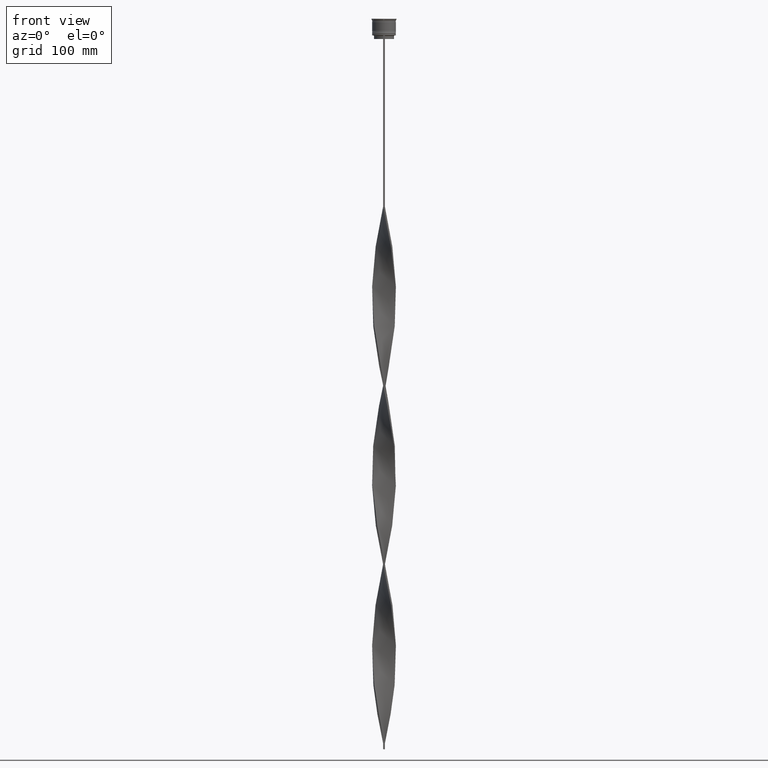
[diagram: clean part render]
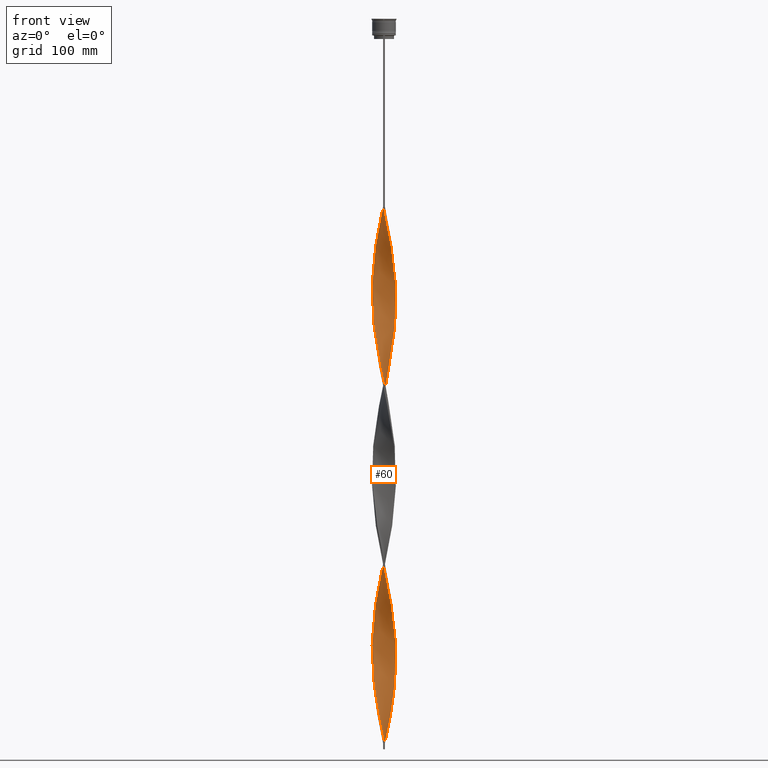
[diagram: same view with one face highlighted and labeled with its STEP entity id]
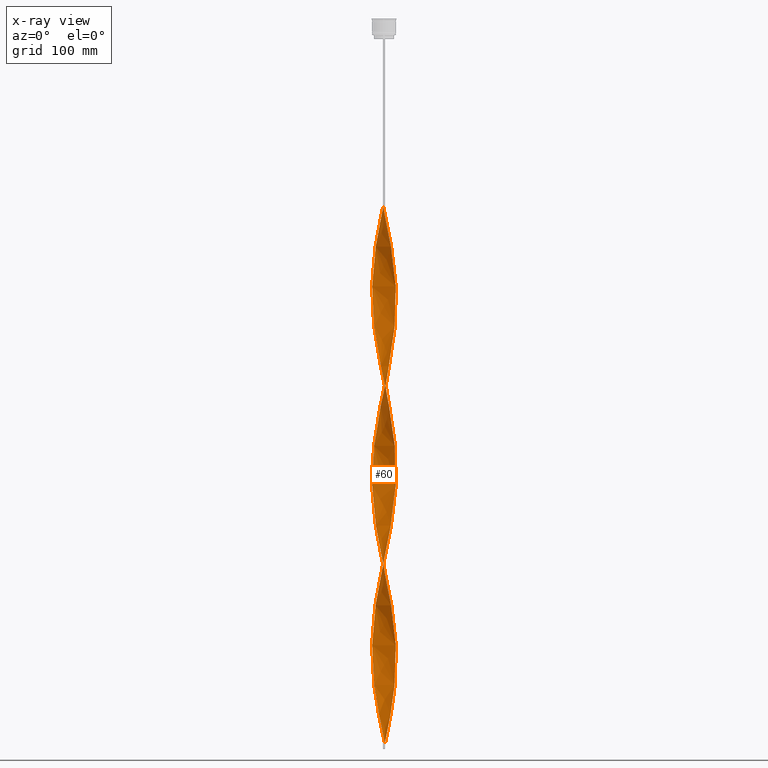
[diagram: x-ray of the same camera — body ghosted, the highlighted face saturated]
A machine part, front view. The second image highlights one B-rep face of the part: STEP entity #60.
The next image is the same camera in x-ray: the body ghosted, the highlighted face saturated — about 0% of this face is hidden behind the body in this view.
In plain terms, the highlighted face is a freeform B-spline surface patch.
Its self-contained STEP definition (entity closure, byte-faithful):
#2 = ORIENTED_EDGE ( 'NONE', *, *, #1140, .F. ) ;
#9 = CARTESIAN_POINT ( 'NONE',  ( 0.7499999999999985567, -9.999999999999998224, -609.0000000000000000 ) ) ;
#21 = CARTESIAN_POINT ( 'NONE',  ( 1.405434628152387067, 9.950842402888577354, -605.8680555555556566 ) ) ;
#23 = CARTESIAN_POINT ( 'NONE',  ( -1.217921924187937321, -9.975528918694859470, -599.6041666666666288 ) ) ;
#27 = CARTESIAN_POINT ( 'NONE',  ( 2.692256508309361251, -9.682265536257560257, -317.7291666666665151 ) ) ;
#37 = CARTESIAN_POINT ( 'NONE',  ( -9.853372546717571012, 1.863746081308408353, -521.3055555555554292 ) ) ;
#47 = CARTESIAN_POINT ( 'NONE',  ( 2.048845568230878378, 9.816553969573071470, -602.7361111111110858 ) ) ;
#49 = CARTESIAN_POINT ( 'NONE',  ( 1.217921924187934879, -9.975528918694864799, -167.3958333333332860 ) ) ;
#52 = CARTESIAN_POINT ( 'NONE',  ( -4.350480947161673662, -9.035254037844383745, -283.2777777777777146 ) ) ;
#60 = ADVANCED_FACE ( 'NONE', ( #1370 ), #4184, .T. ) ;
#69 = CARTESIAN_POINT ( 'NONE',  ( 9.248022421870029319, -3.933013133174655618, -217.5069444444443718 ) ) ;
#74 = CARTESIAN_POINT ( 'NONE',  ( 0.7500000000000009992, 10.00000000000000533, -609.0000000000000000 ) ) ;
#75 = CARTESIAN_POINT ( 'NONE',  ( -3.933013133174651621, 9.248022421870022214, -173.6597222222221717 ) ) ;
#97 = CARTESIAN_POINT ( 'NONE',  ( -7.038959666430927520, 7.172695297828686201, -349.0486111111110858 ) ) ;
#99 = CARTESIAN_POINT ( 'NONE',  ( -0.7499999999999998890, -10.00000000000000533, -157.9999999999999716 ) ) ;
#102 = CARTESIAN_POINT ( 'NONE',  ( 8.750108451655698616, 4.942682784217356406, -562.0208333333331439 ) ) ;
#117 = CARTESIAN_POINT ( 'NONE',  ( 6.192563292782590878, 7.914964995880701792, -280.1458333333333144 ) ) ;
#122 = CARTESIAN_POINT ( 'NONE',  ( -4.942682784217359071, -8.750108451655691510, -280.1458333333333144 ) ) ;
#138 = CARTESIAN_POINT ( 'NONE',  ( -7.914964995880697352, 6.192563292782595319, -355.3124999999998863 ) ) ;
#141 = CARTESIAN_POINT ( 'NONE',  ( 3.312634820742003772, -9.465143979063794788, -320.8611111111110858 ) ) ;
#142 = CARTESIAN_POINT ( 'NONE',  ( 4.519743973034366036, 8.951782750839054614, -289.5416666666666288 ) ) ;
#156 = CARTESIAN_POINT ( 'NONE',  ( 7.038959666430927520, 7.172695297828674654, -417.9513888888888005 ) ) ;
#168 = CARTESIAN_POINT ( 'NONE',  ( -0.5616782761701621940, -10.01234325790314195, -302.0694444444444002 ) ) ;
#169 = CARTESIAN_POINT ( 'NONE',  ( -9.950842402888575577, 1.405434628152387955, -380.3680555555554861 ) ) ;
#189 = CARTESIAN_POINT ( 'NONE',  ( 3.933013133174656062, 9.248022421870027543, -292.6736111111110858 ) ) ;
#200 = CARTESIAN_POINT ( 'NONE',  ( -3.933013133174652065, 9.248022421870022214, -474.3263888888889142 ) ) ;
#209 = CARTESIAN_POINT ( 'NONE',  ( 1.405434628152387289, 9.950842402888575577, -305.2013888888888573 ) ) ;
#220 = CARTESIAN_POINT ( 'NONE',  ( -8.750108451655689734, 4.942682784217357295, -505.6458333333333712 ) ) ;
#229 = CARTESIAN_POINT ( 'NONE',  ( -9.525807899386684596, 3.133924674267432930, -214.3749999999999716 ) ) ;
#232 = CARTESIAN_POINT ( 'NONE',  ( 9.248022421870027543, -3.933013133174655174, -217.5069444444443718 ) ) ;
#236 = CARTESIAN_POINT ( 'NONE',  ( -6.192563292782595319, -7.914964995880696463, -430.4791666666666288 ) ) ;
#250 = CARTESIAN_POINT ( 'NONE',  ( 7.038959666430926632, 7.172695297828674654, -417.9513888888888573 ) ) ;
#256 = CARTESIAN_POINT ( 'NONE',  ( -10.04915759711143508, 0.09456537184762452142, -386.6319444444444571 ) ) ;
#260 = CARTESIAN_POINT ( 'NONE',  ( 3.758279110105988696, -9.320399624033084862, -480.5902777777776578 ) ) ;
#269 = CARTESIAN_POINT ( 'NONE',  ( -8.285254037844385522, -5.649519052838325450, -258.2222222222221717 ) ) ;
#273 = CARTESIAN_POINT ( 'NONE',  ( 3.133924674267438704, 9.525807899386681044, -439.8749999999999432 ) ) ;
#278 = CARTESIAN_POINT ( 'NONE',  ( -9.975528918694859470, 1.217921924187934213, -223.7708333333332575 ) ) ;
#279 = CARTESIAN_POINT ( 'NONE',  ( 9.975528918694863023, 1.217921924187931770, -543.2291666666665151 ) ) ;
#282 = CARTESIAN_POINT ( 'NONE',  ( -2.048845568230883707, -9.816553969573067917, -452.4027777777777715 ) ) ;
#291 = CARTESIAN_POINT ( 'NONE',  ( -9.999999999999998224, -0.7499999999999991118, -233.1666666666666288 ) ) ;
#299 = CARTESIAN_POINT ( 'NONE',  ( 9.465143979063796564, -3.312634820742011765, -521.3055555555554292 ) ) ;
#302 = CARTESIAN_POINT ( 'NONE',  ( -9.320399624033084862, -3.758279110105986032, -405.4236111111110858 ) ) ;
#324 = CARTESIAN_POINT ( 'NONE',  ( -10.00000000000000533, 0.7500000000000017764, -383.4999999999999432 ) ) ;
#338 = CARTESIAN_POINT ( 'NONE',  ( 6.042515785520208738, -8.030100497682095551, -493.1180555555555429 ) ) ;
#343 = CARTESIAN_POINT ( 'NONE',  ( 9.975528918694864799, 1.217921924187931992, -543.2291666666665151 ) ) ;
#356 = CARTESIAN_POINT ( 'NONE',  ( -9.950842402888570248, -1.405434628152380183, -536.9652777777778283 ) ) ;
#363 = CARTESIAN_POINT ( 'NONE',  ( 7.914964995880703569, -6.192563292782589990, -505.6458333333333712 ) ) ;
#365 = CARTESIAN_POINT ( 'NONE',  ( -4.519743973034361595, 8.951782750839049285, -176.7916666666666572 ) ) ;
#366 = CARTESIAN_POINT ( 'NONE',  ( -9.248022421870022214, -3.933013133174650289, -549.4930555555553156 ) ) ;
#372 = CARTESIAN_POINT ( 'NONE',  ( 0.7499999999999985567, -9.999999999999998224, -308.3333333333333712 ) ) ;
#375 =( BOUNDED_CURVE ( )  B_SPLINE_CURVE ( 2, ( #3235, #2122, #1112, #1436, #2549, #75, #365, #4305, #793, #3964, #1162, #2467, #2570, #3987, #2224, #2813, #2836, #1509, #741, #4252, #1084, #2204, #4280, #2521, #3636, #3611, #447, #1862, #4227, #2148, #3261, #475, #2913, #1887, #1781, #4329, #2490, #814, #3910, #122, #1057, #3560, #396, #1810, #3211, #2000, #168, #4010, #2634, #2592, #1684, #879, #141, #3678, #1312, #3409, #2287, #960, #2368, #2955, #512, #3784, #3075, #3321, #1577, #3701, #2933, #622, #1333, #1551, #1531, #541, #2718, #1923, #2025, #2978, #3808, #4374, #4154, #4396, #839, #4348, #1185, #250, #3454, #2250, #3432, #3660, #2047, #1662, #273, #1235, #4474, #4050, #1212, #986, #4496, #2268, #3055, #4127, #2741, #2392, #494, #643, #1904, #3301, #2618, #4030, #859, #385, #3145, #1397, #3170, #1358, #2802, #2479, #37, #1728, #4196, #1006, #4217, #356, #1048, #1426, #1023, #2506, #2092, #3100, #2431, #1747, #3548, #2459, #3847, #1801, #3201, #1451, #3873, #4524, #709, #4177, #1769, #2411, #4564, #662, #9 ),
 .UNSPECIFIED., .F., .T. ) 
 B_SPLINE_CURVE_WITH_KNOTS ( ( 3, 2, 2, 2, 2, 2, 2, 2, 2, 2, 2, 2, 2, 2, 2, 2, 2, 2, 2, 2, 2, 2, 2, 2, 2, 2, 2, 2, 2, 2, 2, 2, 2, 2, 2, 2, 2, 2, 2, 2, 2, 2, 2, 2, 2, 2, 2, 2, 2, 2, 2, 2, 2, 2, 2, 2, 2, 2, 2, 2, 2, 2, 2, 2, 2, 2, 2, 2, 2, 2, 2, 2, 3 ),
 ( 0.000000000000000000, 0.01041666666666666609, 0.02083333333333333218, 0.03125000000000000000, 0.04166666666666666435, 0.05208333333333333565, 0.06250000000000000000, 0.07291666666666667129, 0.08333333333333332871, 0.09375000000000000000, 0.1041666666666666713, 0.1145833333333333287, 0.1250000000000000000, 0.1354166666666666574, 0.1458333333333333426, 0.1562500000000000000, 0.1666666666666666574, 0.1770833333333333426, 0.1875000000000000000, 0.1979166666666666574, 0.2083333333333333426, 0.2187500000000000000, 0.2291666666666666574, 0.2395833333333333426, 0.2500000000000000000, 0.2604166666666666852, 0.2708333333333333148, 0.2812500000000000000, 0.2916666666666666852, 0.3020833333333333148, 0.3125000000000000000, 0.3229166666666666852, 0.3333333333333333148, 0.3437500000000000000, 0.3541666666666666852, 0.3645833333333333148, 0.3750000000000000000, 0.3854166666666666852, 0.3958333333333333148, 0.4062500000000000000, 0.4166666666666666852, 0.4270833333333333148, 0.4375000000000000000, 0.4479166666666666852, 0.4583333333333333148, 0.4687500000000000000, 0.4791666666666666852, 0.4895833333333333148, 0.5000000000000000000, 0.5104166666666666297, 0.5208333333333333703, 0.5312500000000000000, 0.5416666666666666297, 0.5520833333333333703, 0.5625000000000000000, 0.5729166666666666297, 0.5833333333333333703, 0.5937500000000000000, 0.6041666666666666297, 0.6145833333333333703, 0.6250000000000000000, 0.6354166666666666297, 0.6458333333333333703, 0.6562500000000000000, 0.6666666666666666297, 0.6770833333333333703, 0.6875000000000000000, 0.6979166666666666297, 0.7083333333333333703, 0.7187500000000000000, 0.7291666666666666297, 0.7395833333333333703, 0.7500000000000000000 ),
 .UNSPECIFIED. ) 
 CURVE ( )  GEOMETRIC_REPRESENTATION_ITEM ( )  RATIONAL_B_SPLINE_CURVE ( ( 1.000000000000000000, 0.9978589232386034791, 1.000000000000000000, 0.9978589232386034791, 1.000000000000000000, 0.9978589232386034791, 1.000000000000000000, 0.9978589232386034791, 1.000000000000000000, 0.9978589232386034791, 1.000000000000000000, 0.9978589232386034791, 1.000000000000000000, 0.9978589232386034791, 1.000000000000000000, 0.9978589232386034791, 1.000000000000000000, 0.9978589232386034791, 1.000000000000000000, 0.9978589232386034791, 1.000000000000000000, 0.9978589232386034791, 1.000000000000000000, 0.9978589232386034791, 1.000000000000000000, 0.9978589232386034791, 1.000000000000000000, 0.9978589232386034791, 1.000000000000000000, 0.9978589232386034791, 1.000000000000000000, 0.9978589232386034791, 1.000000000000000000, 0.9978589232386034791, 1.000000000000000000, 0.9978589232386034791, 1.000000000000000000, 0.9978589232386034791, 1.000000000000000000, 0.9978589232386034791, 1.000000000000000000, 0.9978589232386034791, 1.000000000000000000, 0.9978589232386034791, 1.000000000000000000, 0.9978589232386034791, 1.000000000000000000, 0.9978589232386034791, 1.000000000000000000, 0.9978589232386034791, 1.000000000000000000, 0.9978589232386034791, 1.000000000000000000, 0.9978589232386034791, 1.000000000000000000, 0.9978589232386034791, 1.000000000000000000, 0.9978589232386034791, 1.000000000000000000, 0.9978589232386034791, 1.000000000000000000, 0.9978589232386034791, 1.000000000000000000, 0.9978589232386034791, 1.000000000000000000, 0.9978589232386034791, 1.000000000000000000, 0.9978589232386034791, 1.000000000000000000, 0.9978589232386034791, 1.000000000000000000, 0.9978589232386034791, 1.000000000000000000, 0.9978589232386034791, 1.000000000000000000, 0.9978589232386034791, 1.000000000000000000, 0.9978589232386034791, 1.000000000000000000, 0.9978589232386034791, 1.000000000000000000, 0.9978589232386034791, 1.000000000000000000, 0.9978589232386034791, 1.000000000000000000, 0.9978589232386034791, 1.000000000000000000, 0.9978589232386034791, 1.000000000000000000, 0.9978589232386034791, 1.000000000000000000, 0.9978589232386034791, 1.000000000000000000, 0.9978589232386034791, 1.000000000000000000, 0.9978589232386034791, 1.000000000000000000, 0.9978589232386034791, 1.000000000000000000, 0.9978589232386034791, 1.000000000000000000, 0.9978589232386034791, 1.000000000000000000, 0.9978589232386034791, 1.000000000000000000, 0.9978589232386034791, 1.000000000000000000, 0.9978589232386034791, 1.000000000000000000, 0.9978589232386034791, 1.000000000000000000, 0.9978589232386034791, 1.000000000000000000, 0.9978589232386034791, 1.000000000000000000, 0.9978589232386034791, 1.000000000000000000, 0.9978589232386034791, 1.000000000000000000, 0.9978589232386034791, 1.000000000000000000, 0.9978589232386034791, 1.000000000000000000, 0.9978589232386034791, 1.000000000000000000, 0.9978589232386034791, 1.000000000000000000, 0.9978589232386034791, 1.000000000000000000, 0.9978589232386034791, 1.000000000000000000, 0.9978589232386034791, 1.000000000000000000, 0.9978589232386034791, 1.000000000000000000, 0.9978589232386034791, 1.000000000000000000, 0.9978589232386034791, 1.000000000000000000, 0.9978589232386034791, 1.000000000000000000, 0.9978589232386034791, 1.000000000000000000, 0.9978589232386034791, 1.000000000000000000 ) ) 
 REPRESENTATION_ITEM ( '' )  );
#385 = CARTESIAN_POINT ( 'NONE',  ( -8.030100497682088445, 6.042515785520205185, -499.3819444444444002 ) ) ;
#390 = CARTESIAN_POINT ( 'NONE',  ( 5.106474812894079562, 8.655543079808078133, -587.0763888888888005 ) ) ;
#396 = CARTESIAN_POINT ( 'NONE',  ( -3.133924674267433819, -9.525807899386684596, -289.5416666666666288 ) ) ;
#397 = CARTESIAN_POINT ( 'NONE',  ( -3.133924674267433819, -9.525807899386684596, -590.2083333333333712 ) ) ;
#402 = CARTESIAN_POINT ( 'NONE',  ( 8.390104474668889978, -5.492599284868781240, -352.1805555555554861 ) ) ;
#420 = CARTESIAN_POINT ( 'NONE',  ( 7.601397897755390431, 6.540737725975568573, -270.7500000000000000 ) ) ;
#424 = CARTESIAN_POINT ( 'NONE',  ( 7.601397897755390431, 6.540737725975568573, -571.4166666666666288 ) ) ;
#442 = CARTESIAN_POINT ( 'NONE',  ( 9.682265536257565586, -2.692256508309367025, -223.7708333333332575 ) ) ;
#446 = CARTESIAN_POINT ( 'NONE',  ( 6.192563292782590878, 7.914964995880701792, -580.8124999999998863 ) ) ;
#447 = CARTESIAN_POINT ( 'NONE',  ( -9.816553969573064364, -2.048845568230871272, -239.4305555555555429 ) ) ;
#470 = CARTESIAN_POINT ( 'NONE',  ( 7.038959666430927520, -7.172695297828685312, -198.7152777777777430 ) ) ;
#475 = CARTESIAN_POINT ( 'NONE',  ( -8.655543079808074580, -5.106474812894071569, -255.0902777777777146 ) ) ;
#491 = CARTESIAN_POINT ( 'NONE',  ( 8.285254037844389075, -5.649519052838332556, -208.1111111111110858 ) ) ;
#494 = CARTESIAN_POINT ( 'NONE',  ( -4.519743973034361595, 8.951782750839049285, -477.4583333333333144 ) ) ;
#496 = CARTESIAN_POINT ( 'NONE',  ( -7.914964995880697352, 6.192563292782595319, -355.3124999999999432 ) ) ;
#512 = CARTESIAN_POINT ( 'NONE',  ( 7.601397897755380662, -6.540737725975567685, -345.9166666666666288 ) ) ;
#513 = CARTESIAN_POINT ( 'NONE',  ( 2.048845568230878378, 9.816553969573071470, -302.0694444444444002 ) ) ;
#529 = CARTESIAN_POINT ( 'NONE',  ( -3.312634820742007769, 9.465143979063791235, -471.1944444444444002 ) ) ;
#538 = CARTESIAN_POINT ( 'NONE',  ( -8.030100497682088445, 6.042515785520206073, -198.7152777777777430 ) ) ;
#541 = CARTESIAN_POINT ( 'NONE',  ( 10.04915759711142798, 0.09456537184761217019, -380.3680555555554861 ) ) ;
#542 = CARTESIAN_POINT ( 'NONE',  ( 7.038959666430926632, -7.172695297828685312, -198.7152777777777430 ) ) ;
#556 = CARTESIAN_POINT ( 'NONE',  ( -9.816553969573064364, -2.048845568230871272, -540.0972222222221717 ) ) ;
#565 = CARTESIAN_POINT ( 'NONE',  ( 5.106474812894079562, 8.655543079808078133, -286.4097222222221717 ) ) ;
#575 = CARTESIAN_POINT ( 'NONE',  ( -9.682265536257560257, -2.692256508309361696, -543.2291666666665151 ) ) ;
#581 = CARTESIAN_POINT ( 'NONE',  ( 10.04915759711143508, -0.09456537184761866499, -236.2986111111110574 ) ) ;
#587 = CARTESIAN_POINT ( 'NONE',  ( 0.5616782761701589743, -10.01234325790314905, -164.2638888888888857 ) ) ;
#597 = EDGE_CURVE ( 'NONE', #3327, #4260, #2760, .T. ) ;
#603 = CARTESIAN_POINT ( 'NONE',  ( -6.192563292782595319, -7.914964995880695575, -430.4791666666666288 ) ) ;
#619 = CARTESIAN_POINT ( 'NONE',  ( -2.692256508309364360, 9.682265536257558480, -468.0624999999999432 ) ) ;
#622 = CARTESIAN_POINT ( 'NONE',  ( 9.731216174740287883, -2.509570238428880273, -367.8402777777777146 ) ) ;
#627 = CARTESIAN_POINT ( 'NONE',  ( -8.030100497682097327, -6.042515785520203409, -417.9513888888888573 ) ) ;
#630 = CARTESIAN_POINT ( 'NONE',  ( -5.649519052838336108, -8.285254037844387298, -433.6111111111110858 ) ) ;
#639 = CARTESIAN_POINT ( 'NONE',  ( 1.405434628152379739, -9.950842402888570248, -311.4652777777776578 ) ) ;
#643 = CARTESIAN_POINT ( 'NONE',  ( -5.106474812894072457, 8.655543079808074580, -480.5902777777776578 ) ) ;
#648 = CARTESIAN_POINT ( 'NONE',  ( 9.853372546717579894, 1.863746081308406799, -546.3611111111110858 ) ) ;
#650 = CARTESIAN_POINT ( 'NONE',  ( -0.09456537184761724946, -10.04915759711143508, -461.7986111111110290 ) ) ;
#662 = CARTESIAN_POINT ( 'NONE',  ( 0.09456537184761271142, -10.04915759711142798, -605.8680555555555429 ) ) ;
#666 = CARTESIAN_POINT ( 'NONE',  ( 7.476962331155815988, -6.682629295305636319, -502.5138888888889142 ) ) ;
#670 = CARTESIAN_POINT ( 'NONE',  ( -8.655543079808081686, 5.106474812894076898, -361.5763888888888005 ) ) ;
#672 = CARTESIAN_POINT ( 'NONE',  ( -0.7499999999999997780, 9.999999999999998224, -157.9999999999999716 ) ) ;
#680 = CARTESIAN_POINT ( 'NONE',  ( 0.7500000000000011102, 10.00000000000000533, -609.0000000000000000 ) ) ;
#694 = CARTESIAN_POINT ( 'NONE',  ( 8.655543079808079909, -5.106474812894076898, -511.9097222222220580 ) ) ;
#698 = CARTESIAN_POINT ( 'NONE',  ( 6.540737725975569461, -7.601397897755390431, -496.2499999999999432 ) ) ;
#709 = CARTESIAN_POINT ( 'NONE',  ( -3.133924674267433819, -9.525807899386684596, -590.2083333333333712 ) ) ;
#715 = CARTESIAN_POINT ( 'NONE',  ( 5.649519052838335220, 8.285254037844389075, -583.9444444444443434 ) ) ;
#721 = CARTESIAN_POINT ( 'NONE',  ( -7.476962331155812436, -6.682629295305628325, -264.4861111111110858 ) ) ;
#740 = CARTESIAN_POINT ( 'NONE',  ( -4.519743973034361595, 8.951782750839049285, -176.7916666666666572 ) ) ;
#741 = CARTESIAN_POINT ( 'NONE',  ( -9.525807899386684596, 3.133924674267432930, -214.3749999999999716 ) ) ;
#742 = CARTESIAN_POINT ( 'NONE',  ( -4.350480947161673662, -9.035254037844383745, -583.9444444444443434 ) ) ;
#746 = CARTESIAN_POINT ( 'NONE',  ( 4.519743973034357154, -8.951782750839051062, -327.1250000000000000 ) ) ;
#767 = CARTESIAN_POINT ( 'NONE',  ( 9.816553969573071470, -2.048845568230875269, -226.9027777777777715 ) ) ;
#771 = CARTESIAN_POINT ( 'NONE',  ( 9.816553969573071470, -2.048845568230875269, -527.5694444444444571 ) ) ;
#773 = CARTESIAN_POINT ( 'NONE',  ( 3.758279110105988696, -9.320399624033083086, -179.9236111111110574 ) ) ;
#789 = CARTESIAN_POINT ( 'NONE',  ( -6.042515785520205185, 8.030100497682097327, -342.7847222222222285 ) ) ;
#793 = CARTESIAN_POINT ( 'NONE',  ( -5.649519052838327227, 8.285254037844385522, -183.0555555555555145 ) ) ;
#810 = CARTESIAN_POINT ( 'NONE',  ( -0.5616782761701561988, 10.01234325790314905, -314.5972222222221717 ) ) ;
#814 = CARTESIAN_POINT ( 'NONE',  ( -6.042515785520205185, -8.030100497682088445, -273.8819444444443434 ) ) ;
#834 = CARTESIAN_POINT ( 'NONE',  ( 0.09456537184761920622, 10.04915759711143508, -311.4652777777776578 ) ) ;
#839 = CARTESIAN_POINT ( 'NONE',  ( 8.285254037844389075, 5.649519052838321009, -408.5555555555555429 ) ) ;
#856 = CARTESIAN_POINT ( 'NONE',  ( 9.465143979063796564, -3.312634820742011765, -220.6388888888888857 ) ) ;
#859 = CARTESIAN_POINT ( 'NONE',  ( -7.601397897755385102, 6.540737725975564132, -496.2499999999999432 ) ) ;
#860 = CARTESIAN_POINT ( 'NONE',  ( -1.217921924187931326, 9.975528918694863023, -317.7291666666665719 ) ) ;
#867 = CARTESIAN_POINT ( 'NONE',  ( 0.7499999999999994449, -3.333333333333330373, -609.0000000000000000 ) ) ;
#872 = CARTESIAN_POINT ( 'NONE',  ( -6.682629295305630102, 7.476962331155812436, -489.9861111111111427 ) ) ;
#879 = CARTESIAN_POINT ( 'NONE',  ( 2.692256508309361251, -9.682265536257560257, -317.7291666666665719 ) ) ;
#880 = CARTESIAN_POINT ( 'NONE',  ( 5.492599284868782128, -8.390104474668898860, -189.3194444444444287 ) ) ;
#906 = CARTESIAN_POINT ( 'NONE',  ( 7.601397897755390431, 6.540737725975568573, -270.7500000000000000 ) ) ;
#925 = CARTESIAN_POINT ( 'NONE',  ( -8.285254037844389075, 5.649519052838336108, -358.4444444444444571 ) ) ;
#931 = CARTESIAN_POINT ( 'NONE',  ( 2.509570238428880273, -9.731216174740296765, -173.6597222222221717 ) ) ;
#936 = CARTESIAN_POINT ( 'NONE',  ( -9.999999999999998224, -0.7499999999999991118, -533.8333333333333712 ) ) ;
#944 = CARTESIAN_POINT ( 'NONE',  ( 10.00000000000000533, -0.7500000000000005551, -233.1666666666666288 ) ) ;
#955 = CARTESIAN_POINT ( 'NONE',  ( -5.649519052838327227, 8.285254037844385522, -483.7222222222222285 ) ) ;
#960 = CARTESIAN_POINT ( 'NONE',  ( 6.192563292782581996, -7.914964995880699128, -336.5208333333332575 ) ) ;
#967 = CARTESIAN_POINT ( 'NONE',  ( -9.853372546717571012, 1.863746081308408353, -220.6388888888888857 ) ) ;
#968 = CARTESIAN_POINT ( 'NONE',  ( 8.285254037844389075, -5.649519052838332556, -508.7777777777777715 ) ) ;
#982 = CARTESIAN_POINT ( 'NONE',  ( 3.312634820742003772, -9.465143979063794788, -320.8611111111110858 ) ) ;
#986 = CARTESIAN_POINT ( 'NONE',  ( -0.09456537184761161507, 10.04915759711142798, -455.5347222222221149 ) ) ;
#992 = CARTESIAN_POINT ( 'NONE',  ( -9.731216174740296765, -2.509570238428879385, -399.1597222222221149 ) ) ;
#994 = CARTESIAN_POINT ( 'NONE',  ( 6.042515785520209626, -8.030100497682095551, -493.1180555555555998 ) ) ;
#1006 = CARTESIAN_POINT ( 'NONE',  ( -10.04915759711142798, -0.09456537184761565351, -530.7013888888888005 ) ) ;
#1011 = CARTESIAN_POINT ( 'NONE',  ( -8.390104474668900636, -5.492599284868775911, -414.8194444444444002 ) ) ;
#1023 = CARTESIAN_POINT ( 'NONE',  ( -9.465143979063791235, -3.312634820742006880, -546.3611111111110858 ) ) ;
#1027 = CARTESIAN_POINT ( 'NONE',  ( 9.525807899386691702, 3.133924674267432042, -552.6249999999998863 ) ) ;
#1032 = CARTESIAN_POINT ( 'NONE',  ( -0.7499999999999997780, -10.00000000000000533, -458.6666666666666856 ) ) ;
#1048 = CARTESIAN_POINT ( 'NONE',  ( -9.816553969573064364, -2.048845568230871272, -540.0972222222221717 ) ) ;
#1056 = CARTESIAN_POINT ( 'NONE',  ( 10.04915759711143508, -0.09456537184761855397, -536.9652777777778283 ) ) ;
#1057 = CARTESIAN_POINT ( 'NONE',  ( -4.350480947161673662, -9.035254037844383745, -283.2777777777777146 ) ) ;
#1058 = CARTESIAN_POINT ( 'NONE',  ( 0.7499999999999985567, -9.999999999999998224, -609.0000000000000000 ) ) ;
#1064 = CARTESIAN_POINT ( 'NONE',  ( 9.999999999999998224, 0.7499999999999980016, -383.4999999999999432 ) ) ;
#1083 = CARTESIAN_POINT ( 'NONE',  ( 8.655543079808081686, -5.106474812894077786, -511.9097222222220580 ) ) ;
#1084 = CARTESIAN_POINT ( 'NONE',  ( -9.853372546717571012, 1.863746081308408353, -220.6388888888888857 ) ) ;
#1085 = CARTESIAN_POINT ( 'NONE',  ( 0.09456537184761269754, -10.04915759711142798, -605.8680555555556566 ) ) ;
#1086 = CARTESIAN_POINT ( 'NONE',  ( -0.7499999999999998890, -10.00000000000000533, -157.9999999999999716 ) ) ;
#1090 = CARTESIAN_POINT ( 'NONE',  ( 7.172695297828676431, -7.038959666430927520, -342.7847222222222285 ) ) ;
#1107 = CARTESIAN_POINT ( 'NONE',  ( 9.320399624033084862, 3.758279110105986920, -255.0902777777776862 ) ) ;
#1111 = CARTESIAN_POINT ( 'NONE',  ( -6.192563292782584661, 7.914964995880697352, -186.1875000000000000 ) ) ;
#1112 = CARTESIAN_POINT ( 'NONE',  ( -2.048845568230873049, 9.816553969573064364, -164.2638888888888857 ) ) ;
#1114 = CARTESIAN_POINT ( 'NONE',  ( 1.863746081308407687, -9.853372546717579894, -170.5277777777777430 ) ) ;
#1117 = CARTESIAN_POINT ( 'NONE',  ( -1.863746081308408575, -9.853372546717571012, -295.8055555555555429 ) ) ;
#1135 = CARTESIAN_POINT ( 'NONE',  ( 1.405434628152387067, 9.950842402888577354, -305.2013888888888573 ) ) ;
#1139 = CARTESIAN_POINT ( 'NONE',  ( 7.172695297828685312, 7.038959666430927520, -574.5486111111111995 ) ) ;
#1140 = EDGE_CURVE ( 'NONE', #4201, #4487, #1316, .T. ) ;
#1157 = CARTESIAN_POINT ( 'NONE',  ( 9.975528918694864799, 1.217921924187931992, -242.5624999999999147 ) ) ;
#1161 = CARTESIAN_POINT ( 'NONE',  ( 7.476962331155815988, -6.682629295305636319, -502.5138888888889142 ) ) ;
#1162 = CARTESIAN_POINT ( 'NONE',  ( -6.682629295305630102, 7.476962331155812436, -189.3194444444444287 ) ) ;
#1178 =( BOUNDED_CURVE ( )  B_SPLINE_CURVE ( 2, ( #1086, #2492, #3212, #49, #1114, #1462, #3943, #773, #2979, #1298, #880, #1905, #1236, #542, #2334, #1599, #2635, #3743, #1985, #232, #1255, #1213, #4397, #3389, #944, #581, #3302, #1968, #3370, #3679, #2315, #2288, #1949, #4461, #2655, #3702, #906, #3661, #4052, #3351, #3726, #565, #142, #189, #4375, #2702, #513, #209, #1619, #4113, #4438, #860, #4416, #2998, #4070, #1578, #1278, #2619, #3017, #2682, #1552, #3038, #4092, #496, #925, #1645, #2957, #4031, #2270, #1924, #3323, #169, #324, #256, #1733, #2437, #4162, #992, #1713, #3763, #4549, #2769, #1011, #627, #3060, #1382, #4479, #603, #3080, #4223, #3813, #3438, #2417, #2376, #2009, #3417, #1362, #2353, #1666, #2784, #1317, #2724, #3503, #3855, #4568, #4133, #1402, #338, #2397, #3830, #666, #4200, #968, #694, #3149, #3792, #299, #1752, #3129, #4502, #2031, #2073, #3484, #279, #648, #2052, #1027, #1690, #1340, #3458, #2097, #4531, #2808, #2750, #3108, #4182, #2198, #390, #3279, #2855, #3879, #2511, #3177, #1431, #3228 ),
 .UNSPECIFIED., .F., .T. ) 
 B_SPLINE_CURVE_WITH_KNOTS ( ( 3, 2, 2, 2, 2, 2, 2, 2, 2, 2, 2, 2, 2, 2, 2, 2, 2, 2, 2, 2, 2, 2, 2, 2, 2, 2, 2, 2, 2, 2, 2, 2, 2, 2, 2, 2, 2, 2, 2, 2, 2, 2, 2, 2, 2, 2, 2, 2, 2, 2, 2, 2, 2, 2, 2, 2, 2, 2, 2, 2, 2, 2, 2, 2, 2, 2, 2, 2, 2, 2, 2, 2, 3 ),
 ( 0.000000000000000000, 0.01041666666666666609, 0.02083333333333333218, 0.03125000000000000000, 0.04166666666666666435, 0.05208333333333333565, 0.06250000000000000000, 0.07291666666666667129, 0.08333333333333332871, 0.09375000000000000000, 0.1041666666666666713, 0.1145833333333333287, 0.1250000000000000000, 0.1354166666666666574, 0.1458333333333333426, 0.1562500000000000000, 0.1666666666666666574, 0.1770833333333333426, 0.1875000000000000000, 0.1979166666666666574, 0.2083333333333333426, 0.2187500000000000000, 0.2291666666666666574, 0.2395833333333333426, 0.2500000000000000000, 0.2604166666666666852, 0.2708333333333333148, 0.2812500000000000000, 0.2916666666666666852, 0.3020833333333333148, 0.3125000000000000000, 0.3229166666666666852, 0.3333333333333333148, 0.3437500000000000000, 0.3541666666666666852, 0.3645833333333333148, 0.3750000000000000000, 0.3854166666666666852, 0.3958333333333333148, 0.4062500000000000000, 0.4166666666666666852, 0.4270833333333333148, 0.4375000000000000000, 0.4479166666666666852, 0.4583333333333333148, 0.4687500000000000000, 0.4791666666666666852, 0.4895833333333333148, 0.5000000000000000000, 0.5104166666666666297, 0.5208333333333333703, 0.5312500000000000000, 0.5416666666666666297, 0.5520833333333333703, 0.5625000000000000000, 0.5729166666666666297, 0.5833333333333333703, 0.5937500000000000000, 0.6041666666666666297, 0.6145833333333333703, 0.6250000000000000000, 0.6354166666666666297, 0.6458333333333333703, 0.6562500000000000000, 0.6666666666666666297, 0.6770833333333333703, 0.6875000000000000000, 0.6979166666666666297, 0.7083333333333333703, 0.7187500000000000000, 0.7291666666666666297, 0.7395833333333333703, 0.7500000000000000000 ),
 .UNSPECIFIED. ) 
 CURVE ( )  GEOMETRIC_REPRESENTATION_ITEM ( )  RATIONAL_B_SPLINE_CURVE ( ( 1.000000000000000000, 0.9978589232386034791, 1.000000000000000000, 0.9978589232386034791, 1.000000000000000000, 0.9978589232386034791, 1.000000000000000000, 0.9978589232386034791, 1.000000000000000000, 0.9978589232386034791, 1.000000000000000000, 0.9978589232386034791, 1.000000000000000000, 0.9978589232386034791, 1.000000000000000000, 0.9978589232386034791, 1.000000000000000000, 0.9978589232386034791, 1.000000000000000000, 0.9978589232386034791, 1.000000000000000000, 0.9978589232386034791, 1.000000000000000000, 0.9978589232386034791, 1.000000000000000000, 0.9978589232386034791, 1.000000000000000000, 0.9978589232386034791, 1.000000000000000000, 0.9978589232386034791, 1.000000000000000000, 0.9978589232386034791, 1.000000000000000000, 0.9978589232386034791, 1.000000000000000000, 0.9978589232386034791, 1.000000000000000000, 0.9978589232386034791, 1.000000000000000000, 0.9978589232386034791, 1.000000000000000000, 0.9978589232386034791, 1.000000000000000000, 0.9978589232386034791, 1.000000000000000000, 0.9978589232386034791, 1.000000000000000000, 0.9978589232386034791, 1.000000000000000000, 0.9978589232386034791, 1.000000000000000000, 0.9978589232386034791, 1.000000000000000000, 0.9978589232386034791, 1.000000000000000000, 0.9978589232386034791, 1.000000000000000000, 0.9978589232386034791, 1.000000000000000000, 0.9978589232386034791, 1.000000000000000000, 0.9978589232386034791, 1.000000000000000000, 0.9978589232386034791, 1.000000000000000000, 0.9978589232386034791, 1.000000000000000000, 0.9978589232386034791, 1.000000000000000000, 0.9978589232386034791, 1.000000000000000000, 0.9978589232386034791, 1.000000000000000000, 0.9978589232386034791, 1.000000000000000000, 0.9978589232386034791, 1.000000000000000000, 0.9978589232386034791, 1.000000000000000000, 0.9978589232386034791, 1.000000000000000000, 0.9978589232386034791, 1.000000000000000000, 0.9978589232386034791, 1.000000000000000000, 0.9978589232386034791, 1.000000000000000000, 0.9978589232386034791, 1.000000000000000000, 0.9978589232386034791, 1.000000000000000000, 0.9978589232386034791, 1.000000000000000000, 0.9978589232386034791, 1.000000000000000000, 0.9978589232386034791, 1.000000000000000000, 0.9978589232386034791, 1.000000000000000000, 0.9978589232386034791, 1.000000000000000000, 0.9978589232386034791, 1.000000000000000000, 0.9978589232386034791, 1.000000000000000000, 0.9978589232386034791, 1.000000000000000000, 0.9978589232386034791, 1.000000000000000000, 0.9978589232386034791, 1.000000000000000000, 0.9978589232386034791, 1.000000000000000000, 0.9978589232386034791, 1.000000000000000000, 0.9978589232386034791, 1.000000000000000000, 0.9978589232386034791, 1.000000000000000000, 0.9978589232386034791, 1.000000000000000000, 0.9978589232386034791, 1.000000000000000000, 0.9978589232386034791, 1.000000000000000000, 0.9978589232386034791, 1.000000000000000000, 0.9978589232386034791, 1.000000000000000000, 0.9978589232386034791, 1.000000000000000000, 0.9978589232386034791, 1.000000000000000000, 0.9978589232386034791, 1.000000000000000000, 0.9978589232386034791, 1.000000000000000000, 0.9978589232386034791, 1.000000000000000000, 0.9978589232386034791, 1.000000000000000000, 0.9978589232386034791, 1.000000000000000000, 0.9978589232386034791, 1.000000000000000000 ) ) 
 REPRESENTATION_ITEM ( '' )  );
#1181 = CARTESIAN_POINT ( 'NONE',  ( 7.476962331155815988, -6.682629295305636319, -201.8472222222222001 ) ) ;
#1185 = CARTESIAN_POINT ( 'NONE',  ( 7.476962331155815988, 6.682629295305624773, -414.8194444444444002 ) ) ;
#1208 = CARTESIAN_POINT ( 'NONE',  ( 5.492599284868782128, -8.390104474668898860, -189.3194444444444287 ) ) ;
#1212 = CARTESIAN_POINT ( 'NONE',  ( 0.5616782761701681892, 10.01234325790314195, -452.4027777777777715 ) ) ;
#1213 = CARTESIAN_POINT ( 'NONE',  ( 9.682265536257565586, -2.692256508309367469, -223.7708333333332860 ) ) ;
#1225 = CARTESIAN_POINT ( 'NONE',  ( -7.601397897755385102, 6.540737725975564132, -496.2499999999999432 ) ) ;
#1235 = CARTESIAN_POINT ( 'NONE',  ( 2.509570238428881161, 9.731216174740287883, -443.0069444444444002 ) ) ;
#1236 = CARTESIAN_POINT ( 'NONE',  ( 6.540737725975569461, -7.601397897755390431, -195.5833333333333144 ) ) ;
#1248 = CARTESIAN_POINT ( 'NONE',  ( -9.853372546717571012, 1.863746081308408353, -521.3055555555554292 ) ) ;
#1255 = CARTESIAN_POINT ( 'NONE',  ( 9.465143979063796564, -3.312634820742011765, -220.6388888888888857 ) ) ;
#1268 = CARTESIAN_POINT ( 'NONE',  ( -9.950842402888570248, -1.405434628152380183, -536.9652777777778283 ) ) ;
#1278 = CARTESIAN_POINT ( 'NONE',  ( -4.350480947161670997, 9.035254037844394404, -333.3888888888888573 ) ) ;
#1291 = CARTESIAN_POINT ( 'NONE',  ( 6.042515785520210514, 8.030100497682084892, -424.2152777777777146 ) ) ;
#1298 = CARTESIAN_POINT ( 'NONE',  ( 4.942682784217358183, -8.750108451655696840, -186.1874999999999716 ) ) ;
#1309 = CARTESIAN_POINT ( 'NONE',  ( 7.914964995880700016, 6.192563292782581996, -411.6875000000000000 ) ) ;
#1312 = CARTESIAN_POINT ( 'NONE',  ( 4.519743973034357154, -8.951782750839051062, -327.1250000000000000 ) ) ;
#1316 = B_SPLINE_CURVE_WITH_KNOTS ( 'NONE', 3,
 ( #2920, #4039, #867, #3334 ),
 .UNSPECIFIED., .F., .F.,
 ( 4, 4 ),
 ( 0.000000000000000000, 1.000000000000000000 ),
 .UNSPECIFIED. ) ;
#1317 = CARTESIAN_POINT ( 'NONE',  ( 1.863746081308407687, -9.853372546717579894, -471.1944444444444002 ) ) ;
#1320 = CARTESIAN_POINT ( 'NONE',  ( 4.350480947161672773, -9.035254037844392627, -483.7222222222222285 ) ) ;
#1328 = CARTESIAN_POINT ( 'NONE',  ( -7.038959666430927520, -7.172695297828676431, -267.6180555555555429 ) ) ;
#1333 = CARTESIAN_POINT ( 'NONE',  ( 9.853372546717571012, -1.863746081308413904, -370.9722222222222285 ) ) ;
#1340 = CARTESIAN_POINT ( 'NONE',  ( 9.035254037844392627, 4.350480947161671885, -558.8888888888889142 ) ) ;
#1345 = CARTESIAN_POINT ( 'NONE',  ( -3.312634820742017983, -9.465143979063794788, -446.1388888888888573 ) ) ;
#1355 = CARTESIAN_POINT ( 'NONE',  ( 10.01234325790314195, -0.5616782761701673010, -377.2361111111110858 ) ) ;
#1358 = CARTESIAN_POINT ( 'NONE',  ( -9.320399624033075980, 3.758279110105987808, -511.9097222222220580 ) ) ;
#1362 = CARTESIAN_POINT ( 'NONE',  ( -0.7499999999999998890, -10.00000000000000533, -458.6666666666666856 ) ) ;
#1365 = CARTESIAN_POINT ( 'NONE',  ( -1.405434628152388177, -9.950842402888577354, -455.5347222222221149 ) ) ;
#1370 = FACE_OUTER_BOUND ( 'NONE', #2606, .T. ) ;
#1382 = CARTESIAN_POINT ( 'NONE',  ( -7.172695297828689753, -7.038959666430923079, -424.2152777777777146 ) ) ;
#1385 = CARTESIAN_POINT ( 'NONE',  ( -8.030100497682097327, -6.042515785520205185, -417.9513888888888005 ) ) ;
#1397 = CARTESIAN_POINT ( 'NONE',  ( -8.750108451655689734, 4.942682784217357295, -505.6458333333333712 ) ) ;
#1402 = CARTESIAN_POINT ( 'NONE',  ( 5.492599284868782128, -8.390104474668898860, -489.9861111111111427 ) ) ;
#1406 = CARTESIAN_POINT ( 'NONE',  ( 9.248022421870029319, -3.933013133174655618, -518.1736111111110858 ) ) ;
#1408 = CARTESIAN_POINT ( 'NONE',  ( -6.042515785520206073, -8.030100497682088445, -574.5486111111111995 ) ) ;
#1426 = CARTESIAN_POINT ( 'NONE',  ( -9.682265536257560257, -2.692256508309361696, -543.2291666666665151 ) ) ;
#1431 = CARTESIAN_POINT ( 'NONE',  ( 1.405434628152387289, 9.950842402888575577, -605.8680555555555429 ) ) ;
#1435 = CARTESIAN_POINT ( 'NONE',  ( -2.048845568230873049, 9.816553969573064364, -164.2638888888888857 ) ) ;
#1436 = CARTESIAN_POINT ( 'NONE',  ( -2.692256508309364360, 9.682265536257558480, -167.3958333333332860 ) ) ;
#1437 = CARTESIAN_POINT ( 'NONE',  ( -0.5616782761701621940, -10.01234325790314195, -602.7361111111110858 ) ) ;
#1442 = CARTESIAN_POINT ( 'NONE',  ( 5.106474812894070681, -8.655543079808076357, -330.2569444444443434 ) ) ;
#1451 = CARTESIAN_POINT ( 'NONE',  ( -4.942682784217359071, -8.750108451655691510, -580.8124999999998863 ) ) ;
#1456 = CARTESIAN_POINT ( 'NONE',  ( 6.540737725975569461, -7.601397897755390431, -195.5833333333333144 ) ) ;
#1460 = CARTESIAN_POINT ( 'NONE',  ( 4.519743973034366036, 8.951782750839054614, -590.2083333333333712 ) ) ;
#1462 = CARTESIAN_POINT ( 'NONE',  ( 2.509570238428879829, -9.731216174740296765, -173.6597222222221717 ) ) ;
#1465 = CARTESIAN_POINT ( 'NONE',  ( -5.492599284868781240, -8.390104474668889978, -277.0138888888889142 ) ) ;
#1478 = CARTESIAN_POINT ( 'NONE',  ( 6.042515785520209626, -8.030100497682095551, -192.4513888888888289 ) ) ;
#1504 = CARTESIAN_POINT ( 'NONE',  ( 9.525807899386691702, 3.133924674267432486, -251.9583333333332860 ) ) ;
#1508 = CARTESIAN_POINT ( 'NONE',  ( 8.285254037844389075, -5.649519052838332556, -508.7777777777777715 ) ) ;
#1509 = CARTESIAN_POINT ( 'NONE',  ( -9.320399624033075980, 3.758279110105987808, -211.2430555555555145 ) ) ;
#1527 = CARTESIAN_POINT ( 'NONE',  ( 5.649519052838335220, 8.285254037844389075, -283.2777777777777146 ) ) ;
#1531 = CARTESIAN_POINT ( 'NONE',  ( 10.01234325790314195, -0.5616782761701673010, -377.2361111111110858 ) ) ;
#1551 = CARTESIAN_POINT ( 'NONE',  ( 9.975528918694857694, -1.217921924187937766, -374.1041666666666288 ) ) ;
#1552 = CARTESIAN_POINT ( 'NONE',  ( -6.540737725975565020, 7.601397897755393984, -345.9166666666666288 ) ) ;
#1567 = CARTESIAN_POINT ( 'NONE',  ( 8.655543079808076357, 5.106474812894070681, -405.4236111111110858 ) ) ;
#1577 = CARTESIAN_POINT ( 'NONE',  ( 9.035254037844383745, -4.350480947161674550, -358.4444444444444571 ) ) ;
#1578 = CARTESIAN_POINT ( 'NONE',  ( -3.758279110105986920, 9.320399624033083086, -330.2569444444443434 ) ) ;
#1590 = CARTESIAN_POINT ( 'NONE',  ( 7.476962331155815988, 6.682629295305624773, -414.8194444444444002 ) ) ;
#1599 = CARTESIAN_POINT ( 'NONE',  ( 7.914964995880702681, -6.192563292782589990, -204.9791666666666288 ) ) ;
#1611 = CARTESIAN_POINT ( 'NONE',  ( 4.350480947161674550, 9.035254037844383745, -433.6111111111110858 ) ) ;
#1619 = CARTESIAN_POINT ( 'NONE',  ( 0.7500000000000011102, 10.00000000000000533, -308.3333333333333712 ) ) ;
#1632 = CARTESIAN_POINT ( 'NONE',  ( -9.465143979063791235, -3.312634820742006880, -546.3611111111110858 ) ) ;
#1641 = CARTESIAN_POINT ( 'NONE',  ( -10.04915759711142798, -0.09456537184761565351, -230.0347222222222001 ) ) ;
#1645 = CARTESIAN_POINT ( 'NONE',  ( -8.655543079808079909, 5.106474812894076010, -361.5763888888888005 ) ) ;
#1649 = CARTESIAN_POINT ( 'NONE',  ( -4.519743973034370477, -8.951782750839052838, -439.8749999999999432 ) ) ;
#1654 = CARTESIAN_POINT ( 'NONE',  ( 3.758279110105988696, -9.320399624033084862, -179.9236111111110574 ) ) ;
#1662 = CARTESIAN_POINT ( 'NONE',  ( 3.758279110105995358, 9.320399624033074204, -436.7430555555554861 ) ) ;
#1666 = CARTESIAN_POINT ( 'NONE',  ( 0.5616782761701588633, -10.01234325790314905, -464.9305555555555429 ) ) ;
#1669 = CARTESIAN_POINT ( 'NONE',  ( -9.035254037844394404, -4.350480947161667444, -408.5555555555555429 ) ) ;
#1681 = CARTESIAN_POINT ( 'NONE',  ( -3.133924674267433819, -9.525807899386684596, -289.5416666666666288 ) ) ;
#1684 = CARTESIAN_POINT ( 'NONE',  ( 2.048845568230870828, -9.816553969573064364, -314.5972222222221717 ) ) ;
#1689 = CARTESIAN_POINT ( 'NONE',  ( -10.01234325790314195, 0.5616782761701593074, -226.9027777777777715 ) ) ;
#1690 = CARTESIAN_POINT ( 'NONE',  ( 9.320399624033083086, 3.758279110105986920, -555.7569444444444571 ) ) ;
#1693 = CARTESIAN_POINT ( 'NONE',  ( 1.217921924187935101, -9.975528918694866576, -468.0624999999999432 ) ) ;
#1702 = CARTESIAN_POINT ( 'NONE',  ( -8.951782750839049285, -4.519743973034358930, -251.9583333333332860 ) ) ;
#1713 = CARTESIAN_POINT ( 'NONE',  ( -9.525807899386691702, -3.133924674267428490, -402.2916666666666856 ) ) ;
#1717 = CARTESIAN_POINT ( 'NONE',  ( -9.465143979063794788, 3.312634820742017538, -370.9722222222222285 ) ) ;
#1728 = CARTESIAN_POINT ( 'NONE',  ( -9.975528918694857694, 1.217921924187934213, -524.4375000000000000 ) ) ;
#1733 = CARTESIAN_POINT ( 'NONE',  ( -10.01234325790314905, -0.5616782761701556437, -389.7638888888889142 ) ) ;
#1736 = CARTESIAN_POINT ( 'NONE',  ( -8.951782750839052838, 4.519743973034369589, -364.7083333333333144 ) ) ;
#1739 = CARTESIAN_POINT ( 'NONE',  ( -0.7499999999999997780, -10.00000000000000533, -157.9999999999999716 ) ) ;
#1747 = CARTESIAN_POINT ( 'NONE',  ( -7.914964995880699128, -6.192563292782581996, -562.0208333333331439 ) ) ;
#1752 = CARTESIAN_POINT ( 'NONE',  ( 9.682265536257565586, -2.692256508309367469, -524.4375000000000000 ) ) ;
#1756 = CARTESIAN_POINT ( 'NONE',  ( -4.942682784217359071, -8.750108451655691510, -580.8124999999998863 ) ) ;
#1769 = CARTESIAN_POINT ( 'NONE',  ( -1.863746081308408575, -9.853372546717571012, -596.4722222222222854 ) ) ;
#1779 = CARTESIAN_POINT ( 'NONE',  ( 5.106474812894080451, 8.655543079808079909, -587.0763888888889142 ) ) ;
#1781 = CARTESIAN_POINT ( 'NONE',  ( -7.476962331155812436, -6.682629295305628325, -264.4861111111110858 ) ) ;
#1782 = CARTESIAN_POINT ( 'NONE',  ( -8.285254037844385522, -5.649519052838325450, -558.8888888888889142 ) ) ;
#1788 = CARTESIAN_POINT ( 'NONE',  ( -4.942682784217359071, -8.750108451655691510, -280.1458333333333144 ) ) ;
#1801 = CARTESIAN_POINT ( 'NONE',  ( -6.042515785520205185, -8.030100497682088445, -574.5486111111110858 ) ) ;
#1809 = CARTESIAN_POINT ( 'NONE',  ( 9.950842402888577354, -1.405434628152383958, -530.7013888888888005 ) ) ;
#1810 = CARTESIAN_POINT ( 'NONE',  ( -2.509570238428880273, -9.731216174740287883, -292.6736111111110858 ) ) ;
#1815 = CARTESIAN_POINT ( 'NONE',  ( 8.750108451655687958, -4.942682784217363512, -355.3124999999998863 ) ) ;
#1833 = CARTESIAN_POINT ( 'NONE',  ( 4.519743973034366036, 8.951782750839054614, -289.5416666666666288 ) ) ;
#1837 = CARTESIAN_POINT ( 'NONE',  ( 9.853372546717579894, 1.863746081308407021, -546.3611111111110858 ) ) ;
#1856 = CARTESIAN_POINT ( 'NONE',  ( -6.540737725975565020, 7.601397897755393984, -345.9166666666666288 ) ) ;
#1861 = CARTESIAN_POINT ( 'NONE',  ( -5.106474812894072457, 8.655543079808076357, -179.9236111111110574 ) ) ;
#1862 = CARTESIAN_POINT ( 'NONE',  ( -9.682265536257560257, -2.692256508309361696, -242.5624999999999432 ) ) ;
#1883 = CARTESIAN_POINT ( 'NONE',  ( -4.942682784217356406, 8.750108451655700392, -336.5208333333332575 ) ) ;
#1887 = CARTESIAN_POINT ( 'NONE',  ( -7.914964995880699128, -6.192563292782581996, -261.3541666666666856 ) ) ;
#1900 = CARTESIAN_POINT ( 'NONE',  ( 5.106474812894080451, 8.655543079808079909, -286.4097222222221717 ) ) ;
#1904 = CARTESIAN_POINT ( 'NONE',  ( -5.649519052838327227, 8.285254037844385522, -483.7222222222222285 ) ) ;
#1905 = CARTESIAN_POINT ( 'NONE',  ( 6.042515785520208738, -8.030100497682095551, -192.4513888888888289 ) ) ;
#1920 = CARTESIAN_POINT ( 'NONE',  ( 10.00000000000000533, -0.7500000000000004441, -233.1666666666666288 ) ) ;
#1923 = CARTESIAN_POINT ( 'NONE',  ( 9.950842402888572025, 1.405434628152375076, -386.6319444444444571 ) ) ;
#1924 = CARTESIAN_POINT ( 'NONE',  ( -9.682265536257563809, 2.692256508309370133, -374.1041666666666288 ) ) ;
#1938 = CARTESIAN_POINT ( 'NONE',  ( -9.320399624033075980, 3.758279110105987808, -511.9097222222220580 ) ) ;
#1949 = CARTESIAN_POINT ( 'NONE',  ( 9.035254037844392627, 4.350480947161671885, -258.2222222222221717 ) ) ;
#1961 = CARTESIAN_POINT ( 'NONE',  ( 9.682265536257562033, 2.692256508309355922, -392.8958333333332575 ) ) ;
#1968 = CARTESIAN_POINT ( 'NONE',  ( 9.975528918694863023, 1.217921924187931770, -242.5624999999999432 ) ) ;
#1978 = CARTESIAN_POINT ( 'NONE',  ( -1.405434628152381515, 9.950842402888570248, -461.7986111111110290 ) ) ;
#1985 = CARTESIAN_POINT ( 'NONE',  ( 8.951782750839054614, -4.519743973034365148, -214.3749999999999716 ) ) ;
#2000 = CARTESIAN_POINT ( 'NONE',  ( -1.217921924187937099, -9.975528918694857694, -298.9374999999999432 ) ) ;
#2006 = CARTESIAN_POINT ( 'NONE',  ( -8.750108451655689734, 4.942682784217357295, -204.9791666666666288 ) ) ;
#2009 = CARTESIAN_POINT ( 'NONE',  ( -2.048845568230883707, -9.816553969573067917, -452.4027777777777715 ) ) ;
#2013 = CARTESIAN_POINT ( 'NONE',  ( -8.750108451655700392, -4.942682784217355518, -411.6875000000000000 ) ) ;
#2022 = CARTESIAN_POINT ( 'NONE',  ( -4.519743973034361595, 8.951782750839049285, -477.4583333333333144 ) ) ;
#2025 = CARTESIAN_POINT ( 'NONE',  ( 9.816553969573064364, 2.048845568230869940, -389.7638888888889142 ) ) ;
#2031 = CARTESIAN_POINT ( 'NONE',  ( 10.00000000000000533, -0.7500000000000005551, -533.8333333333333712 ) ) ;
#2043 = CARTESIAN_POINT ( 'NONE',  ( 9.731216174740287883, -2.509570238428880273, -367.8402777777777146 ) ) ;
#2047 = CARTESIAN_POINT ( 'NONE',  ( 4.350480947161674550, 9.035254037844383745, -433.6111111111110858 ) ) ;
#2052 = CARTESIAN_POINT ( 'NONE',  ( 9.731216174740296765, 2.509570238428878053, -549.4930555555554292 ) ) ;
#2073 = CARTESIAN_POINT ( 'NONE',  ( 10.04915759711143508, -0.09456537184761866499, -536.9652777777778283 ) ) ;
#2077 = CARTESIAN_POINT ( 'NONE',  ( -9.248022421870029319, 3.933013133174656506, -367.8402777777777146 ) ) ;
#2092 = CARTESIAN_POINT ( 'NONE',  ( -8.951782750839049285, -4.519743973034358930, -552.6249999999998863 ) ) ;
#2097 = CARTESIAN_POINT ( 'NONE',  ( 8.390104474668897083, 5.492599284868780352, -565.1527777777778283 ) ) ;
#2101 = CARTESIAN_POINT ( 'NONE',  ( -7.601397897755391320, -6.540737725975566796, -421.0833333333333144 ) ) ;
#2122 = CARTESIAN_POINT ( 'NONE',  ( -1.405434628152381515, 9.950842402888570248, -161.1319444444444002 ) ) ;
#2128 = CARTESIAN_POINT ( 'NONE',  ( -3.758279110105989584, -9.320399624033075980, -286.4097222222221717 ) ) ;
#2148 = CARTESIAN_POINT ( 'NONE',  ( -9.248022421870022214, -3.933013133174650289, -248.8263888888888289 ) ) ;
#2149 = CARTESIAN_POINT ( 'NONE',  ( -7.476962331155812436, -6.682629295305628325, -565.1527777777778283 ) ) ;
#2154 = CARTESIAN_POINT ( 'NONE',  ( 6.682629295305628325, -7.476962331155812436, -339.6527777777777715 ) ) ;
#2175 = CARTESIAN_POINT ( 'NONE',  ( 8.030100497682097327, 6.042515785520205185, -267.6180555555555429 ) ) ;
#2179 = CARTESIAN_POINT ( 'NONE',  ( 8.030100497682097327, 6.042515785520205185, -568.2847222222220580 ) ) ;
#2198 = CARTESIAN_POINT ( 'NONE',  ( 5.649519052838335220, 8.285254037844389075, -583.9444444444443434 ) ) ;
#2203 = CARTESIAN_POINT ( 'NONE',  ( -0.7499999999999997780, 9.999999999999998224, -157.9999999999999716 ) ) ;
#2204 = CARTESIAN_POINT ( 'NONE',  ( -9.975528918694857694, 1.217921924187934213, -223.7708333333332860 ) ) ;
#2220 = CARTESIAN_POINT ( 'NONE',  ( -2.509570238428876277, 9.731216174740294989, -323.9930555555555429 ) ) ;
#2224 = CARTESIAN_POINT ( 'NONE',  ( -8.390104474668891754, 5.492599284868779463, -201.8472222222222001 ) ) ;
#2247 = CARTESIAN_POINT ( 'NONE',  ( -3.758279110105986920, 9.320399624033084862, -330.2569444444443434 ) ) ;
#2250 = CARTESIAN_POINT ( 'NONE',  ( 6.042515785520209626, 8.030100497682084892, -424.2152777777777146 ) ) ;
#2265 = CARTESIAN_POINT ( 'NONE',  ( 10.04915759711143508, -0.09456537184761855397, -236.2986111111110574 ) ) ;
#2268 = CARTESIAN_POINT ( 'NONE',  ( -1.405434628152381515, 9.950842402888570248, -461.7986111111110290 ) ) ;
#2270 = CARTESIAN_POINT ( 'NONE',  ( -9.465143979063794788, 3.312634820742017538, -370.9722222222222285 ) ) ;
#2287 = CARTESIAN_POINT ( 'NONE',  ( 5.649519052838325450, -8.285254037844385522, -333.3888888888888573 ) ) ;
#2288 = CARTESIAN_POINT ( 'NONE',  ( 9.320399624033083086, 3.758279110105986920, -255.0902777777777146 ) ) ;
#2302 = CARTESIAN_POINT ( 'NONE',  ( 5.492599284868783016, 8.390104474668889978, -427.3472222222222285 ) ) ;
#2315 = CARTESIAN_POINT ( 'NONE',  ( 9.525807899386691702, 3.133924674267432042, -251.9583333333332860 ) ) ;
#2326 = CARTESIAN_POINT ( 'NONE',  ( 8.951782750839051062, 4.519743973034356266, -402.2916666666666856 ) ) ;
#2334 = CARTESIAN_POINT ( 'NONE',  ( 7.476962331155815988, -6.682629295305636319, -201.8472222222222001 ) ) ;
#2345 = CARTESIAN_POINT ( 'NONE',  ( 8.285254037844389075, 5.649519052838321009, -408.5555555555555429 ) ) ;
#2353 = CARTESIAN_POINT ( 'NONE',  ( -0.09456537184761737436, -10.04915759711143508, -461.7986111111110290 ) ) ;
#2364 = CARTESIAN_POINT ( 'NONE',  ( 3.758279110105994913, 9.320399624033074204, -436.7430555555554861 ) ) ;
#2368 = CARTESIAN_POINT ( 'NONE',  ( 6.682629295305628325, -7.476962331155812436, -339.6527777777777715 ) ) ;
#2376 = CARTESIAN_POINT ( 'NONE',  ( -2.692256508309370577, -9.682265536257563809, -449.2708333333333144 ) ) ;
#2389 = CARTESIAN_POINT ( 'NONE',  ( -1.217921924187937321, -9.975528918694859470, -298.9374999999999432 ) ) ;
#2392 = CARTESIAN_POINT ( 'NONE',  ( -3.933013133174651621, 9.248022421870022214, -474.3263888888889142 ) ) ;
#2397 = CARTESIAN_POINT ( 'NONE',  ( 6.540737725975569461, -7.601397897755390431, -496.2499999999999432 ) ) ;
#2399 = CARTESIAN_POINT ( 'NONE',  ( -9.950842402888577354, 1.405434628152387511, -380.3680555555554861 ) ) ;
#2411 = CARTESIAN_POINT ( 'NONE',  ( -1.217921924187937099, -9.975528918694857694, -599.6041666666666288 ) ) ;
#2417 = CARTESIAN_POINT ( 'NONE',  ( -3.312634820742017983, -9.465143979063794788, -446.1388888888888573 ) ) ;
#2431 = CARTESIAN_POINT ( 'NONE',  ( -8.285254037844385522, -5.649519052838325450, -558.8888888888889142 ) ) ;
#2437 = CARTESIAN_POINT ( 'NONE',  ( -9.975528918694864799, -1.217921924187925997, -392.8958333333332575 ) ) ;
#2443 = CARTESIAN_POINT ( 'NONE',  ( 0.5616782761701589743, -10.01234325790314905, -464.9305555555555429 ) ) ;
#2459 = CARTESIAN_POINT ( 'NONE',  ( -7.038959666430926632, -7.172695297828676431, -568.2847222222221717 ) ) ;
#2466 = CARTESIAN_POINT ( 'NONE',  ( 9.320399624033084862, 3.758279110105986920, -555.7569444444444571 ) ) ;
#2467 = CARTESIAN_POINT ( 'NONE',  ( -7.172695297828679983, 7.038959666430923079, -192.4513888888888289 ) ) ;
#2472 = CARTESIAN_POINT ( 'NONE',  ( -9.682265536257560257, -2.692256508309361696, -242.5624999999999147 ) ) ;
#2479 = CARTESIAN_POINT ( 'NONE',  ( -9.731216174740287883, 2.509570238428879385, -518.1736111111110858 ) ) ;
#2489 = CARTESIAN_POINT ( 'NONE',  ( -3.312634820742007769, 9.465143979063791235, -170.5277777777777430 ) ) ;
#2490 = CARTESIAN_POINT ( 'NONE',  ( -6.540737725975564132, -7.601397897755384214, -270.7500000000000000 ) ) ;
#2491 = CARTESIAN_POINT ( 'NONE',  ( -7.914964995880700016, -6.192563292782582884, -562.0208333333331439 ) ) ;
#2492 = CARTESIAN_POINT ( 'NONE',  ( -0.09456537184761737436, -10.04915759711143508, -161.1319444444444002 ) ) ;
#2497 = CARTESIAN_POINT ( 'NONE',  ( -6.042515785520206073, -8.030100497682088445, -273.8819444444444002 ) ) ;
#2506 = CARTESIAN_POINT ( 'NONE',  ( -9.248022421870022214, -3.933013133174650289, -549.4930555555554292 ) ) ;
#2511 = CARTESIAN_POINT ( 'NONE',  ( 2.692256508309370133, 9.682265536257565586, -599.6041666666666288 ) ) ;
#2514 = CARTESIAN_POINT ( 'NONE',  ( 8.390104474668897083, 5.492599284868780352, -264.4861111111110858 ) ) ;
#2519 = CARTESIAN_POINT ( 'NONE',  ( -7.172695297828679983, 7.038959666430923967, -192.4513888888888289 ) ) ;
#2521 = CARTESIAN_POINT ( 'NONE',  ( -10.04915759711142798, -0.09456537184761565351, -230.0347222222222001 ) ) ;
#2527 = CARTESIAN_POINT ( 'NONE',  ( -9.816553969573064364, -2.048845568230871272, -239.4305555555555429 ) ) ;
#2544 = CARTESIAN_POINT ( 'NONE',  ( -1.217921924187931548, 9.975528918694864799, -317.7291666666665151 ) ) ;
#2548 = CARTESIAN_POINT ( 'NONE',  ( 2.692256508309369689, 9.682265536257565586, -599.6041666666666288 ) ) ;
#2549 = CARTESIAN_POINT ( 'NONE',  ( -3.312634820742007769, 9.465143979063791235, -170.5277777777777430 ) ) ;
#2565 = CARTESIAN_POINT ( 'NONE',  ( 6.682629295305638095, 7.476962331155814212, -277.0138888888889142 ) ) ;
#2569 = CARTESIAN_POINT ( 'NONE',  ( 9.465143979063796564, -3.312634820742011765, -521.3055555555554292 ) ) ;
#2570 = CARTESIAN_POINT ( 'NONE',  ( -7.601397897755385102, 6.540737725975564132, -195.5833333333333144 ) ) ;
#2588 = CARTESIAN_POINT ( 'NONE',  ( -1.863746081308403690, 9.853372546717578118, -320.8611111111110858 ) ) ;
#2592 = CARTESIAN_POINT ( 'NONE',  ( 1.405434628152379739, -9.950842402888570248, -311.4652777777777146 ) ) ;
#2606 = EDGE_LOOP ( 'NONE', ( #3467, #3192, #2, #3040 ) ) ;
#2615 = CARTESIAN_POINT ( 'NONE',  ( 7.172695297828685312, 7.038959666430927520, -273.8819444444444002 ) ) ;
#2618 = CARTESIAN_POINT ( 'NONE',  ( -6.682629295305630102, 7.476962331155812436, -489.9861111111111427 ) ) ;
#2619 = CARTESIAN_POINT ( 'NONE',  ( -4.942682784217356406, 8.750108451655700392, -336.5208333333332575 ) ) ;
#2627 = CARTESIAN_POINT ( 'NONE',  ( 0.5616782761701681892, 10.01234325790314195, -452.4027777777777715 ) ) ;
#2634 = CARTESIAN_POINT ( 'NONE',  ( 0.7499999999999985567, -9.999999999999998224, -308.3333333333333712 ) ) ;
#2635 = CARTESIAN_POINT ( 'NONE',  ( 8.285254037844389075, -5.649519052838332556, -208.1111111111110858 ) ) ;
#2647 = CARTESIAN_POINT ( 'NONE',  ( -10.01234325790314195, 0.5616782761701593074, -527.5694444444444571 ) ) ;
#2655 = CARTESIAN_POINT ( 'NONE',  ( 8.390104474668897083, 5.492599284868780352, -264.4861111111110858 ) ) ;
#2671 = CARTESIAN_POINT ( 'NONE',  ( -9.975528918694859470, 1.217921924187934213, -524.4375000000000000 ) ) ;
#2682 = CARTESIAN_POINT ( 'NONE',  ( -6.042515785520204297, 8.030100497682097327, -342.7847222222222285 ) ) ;
#2688 = CARTESIAN_POINT ( 'NONE',  ( 1.863746081308407909, -9.853372546717579894, -170.5277777777777430 ) ) ;
#2694 = CARTESIAN_POINT ( 'NONE',  ( -10.04915759711142798, -0.09456537184761565351, -530.7013888888888005 ) ) ;
#2702 = CARTESIAN_POINT ( 'NONE',  ( 2.692256508309370133, 9.682265536257565586, -298.9374999999999432 ) ) ;
#2705 = CARTESIAN_POINT ( 'NONE',  ( -9.731216174740296765, -2.509570238428879385, -399.1597222222221149 ) ) ;
#2714 = DIRECTION ( 'NONE',  ( 0.000000000000000000, 1.000000000000000000, 0.000000000000000000 ) ) ;
#2715 = CARTESIAN_POINT ( 'NONE',  ( 2.509570238428881161, 9.731216174740287883, -443.0069444444444002 ) ) ;
#2718 = CARTESIAN_POINT ( 'NONE',  ( 9.999999999999998224, 0.7499999999999980016, -383.4999999999999432 ) ) ;
#2721 = CARTESIAN_POINT ( 'NONE',  ( -9.035254037844385522, 4.350480947161671885, -208.1111111111110858 ) ) ;
#2724 = CARTESIAN_POINT ( 'NONE',  ( 2.509570238428879829, -9.731216174740296765, -474.3263888888889142 ) ) ;
#2737 = CARTESIAN_POINT ( 'NONE',  ( 9.320399624033075980, -3.758279110105986032, -361.5763888888888005 ) ) ;
#2741 = CARTESIAN_POINT ( 'NONE',  ( -3.312634820742007769, 9.465143979063791235, -471.1944444444444002 ) ) ;
#2750 = CARTESIAN_POINT ( 'NONE',  ( 7.172695297828685312, 7.038959666430926632, -574.5486111111110858 ) ) ;
#2760 = LINE ( 'NONE', #4427, #4134 ) ;
#2761 = CARTESIAN_POINT ( 'NONE',  ( -6.540737725975564132, -7.601397897755384214, -270.7500000000000000 ) ) ;
#2769 = CARTESIAN_POINT ( 'NONE',  ( -8.750108451655700392, -4.942682784217355518, -411.6875000000000000 ) ) ;
#2771 = CARTESIAN_POINT ( 'NONE',  ( 5.492599284868782128, -8.390104474668898860, -489.9861111111111427 ) ) ;
#2784 = CARTESIAN_POINT ( 'NONE',  ( 1.217921924187934879, -9.975528918694864799, -468.0624999999999432 ) ) ;
#2802 = CARTESIAN_POINT ( 'NONE',  ( -9.525807899386684596, 3.133924674267432930, -515.0416666666666288 ) ) ;
#2808 = CARTESIAN_POINT ( 'NONE',  ( 7.601397897755390431, 6.540737725975568573, -571.4166666666666288 ) ) ;
#2812 = CARTESIAN_POINT ( 'NONE',  ( 8.951782750839054614, -4.519743973034365148, -515.0416666666666288 ) ) ;
#2813 = CARTESIAN_POINT ( 'NONE',  ( -8.750108451655689734, 4.942682784217357295, -204.9791666666666288 ) ) ;
#2836 = CARTESIAN_POINT ( 'NONE',  ( -9.035254037844385522, 4.350480947161671885, -208.1111111111110858 ) ) ;
#2837 = CARTESIAN_POINT ( 'NONE',  ( -8.951782750839049285, -4.519743973034358930, -552.6249999999998863 ) ) ;
#2842 = CARTESIAN_POINT ( 'NONE',  ( 3.933013133174646736, -9.248022421870027543, -323.9930555555555429 ) ) ;
#2855 = CARTESIAN_POINT ( 'NONE',  ( 3.933013133174656062, 9.248022421870027543, -593.3402777777777146 ) ) ;
#2862 = CARTESIAN_POINT ( 'NONE',  ( -3.933013133174652065, 9.248022421870022214, -173.6597222222221717 ) ) ;
#2867 = CARTESIAN_POINT ( 'NONE',  ( -8.655543079808076357, -5.106474812894071569, -255.0902777777776862 ) ) ;
#2908 = CARTESIAN_POINT ( 'NONE',  ( 8.655543079808081686, -5.106474812894077786, -211.2430555555554861 ) ) ;
#2913 = CARTESIAN_POINT ( 'NONE',  ( -8.285254037844385522, -5.649519052838325450, -258.2222222222221717 ) ) ;
#2920 = CARTESIAN_POINT ( 'NONE',  ( 0.7500000000000011102, 10.00000000000000533, -609.0000000000000000 ) ) ;
#2929 = CARTESIAN_POINT ( 'NONE',  ( -7.476962331155814212, 6.682629295305638095, -352.1805555555554861 ) ) ;
#2933 = CARTESIAN_POINT ( 'NONE',  ( 9.525807899386681044, -3.133924674267438260, -364.7083333333333144 ) ) ;
#2951 = CARTESIAN_POINT ( 'NONE',  ( 8.750108451655698616, 4.942682784217356406, -261.3541666666666856 ) ) ;
#2955 = CARTESIAN_POINT ( 'NONE',  ( 7.172695297828676431, -7.038959666430926632, -342.7847222222222285 ) ) ;
#2957 = CARTESIAN_POINT ( 'NONE',  ( -8.951782750839052838, 4.519743973034369589, -364.7083333333333144 ) ) ;
#2970 = CARTESIAN_POINT ( 'NONE',  ( -6.192563292782584661, 7.914964995880697352, -486.8541666666665719 ) ) ;
#2978 = CARTESIAN_POINT ( 'NONE',  ( 9.682265536257562033, 2.692256508309355922, -392.8958333333332575 ) ) ;
#2979 = CARTESIAN_POINT ( 'NONE',  ( 4.350480947161672773, -9.035254037844392627, -183.0555555555555145 ) ) ;
#2990 = CARTESIAN_POINT ( 'NONE',  ( -9.525807899386684596, 3.133924674267432930, -515.0416666666666288 ) ) ;
#2998 = CARTESIAN_POINT ( 'NONE',  ( -2.509570238428876277, 9.731216174740294989, -323.9930555555555998 ) ) ;
#3009 = CARTESIAN_POINT ( 'NONE',  ( -2.048845568230873049, 9.816553969573064364, -464.9305555555555429 ) ) ;
#3017 = CARTESIAN_POINT ( 'NONE',  ( -5.492599284868780352, 8.390104474668897083, -339.6527777777777715 ) ) ;
#3029 = CARTESIAN_POINT ( 'NONE',  ( -5.106474812894072457, 8.655543079808076357, -480.5902777777776578 ) ) ;
#3038 = CARTESIAN_POINT ( 'NONE',  ( -7.038959666430926632, 7.172695297828686201, -349.0486111111110858 ) ) ;
#3040 = ORIENTED_EDGE ( 'NONE', *, *, #4548, .F. ) ;
#3042 = CARTESIAN_POINT ( 'NONE',  ( -8.285254037844389075, 5.649519052838336108, -358.4444444444444571 ) ) ;
#3051 = CARTESIAN_POINT ( 'NONE',  ( 9.816553969573064364, 2.048845568230869940, -389.7638888888889142 ) ) ;
#3055 = CARTESIAN_POINT ( 'NONE',  ( -2.048845568230873049, 9.816553969573064364, -464.9305555555555429 ) ) ;
#3060 = CARTESIAN_POINT ( 'NONE',  ( -7.601397897755391320, -6.540737725975566796, -421.0833333333333144 ) ) ;
#3063 = CARTESIAN_POINT ( 'NONE',  ( -9.975528918694866576, -1.217921924187925997, -392.8958333333332575 ) ) ;
#3072 = CARTESIAN_POINT ( 'NONE',  ( 7.601397897755380662, -6.540737725975567685, -345.9166666666666288 ) ) ;
#3075 = CARTESIAN_POINT ( 'NONE',  ( 8.390104474668889978, -5.492599284868781240, -352.1805555555554861 ) ) ;
#3080 = CARTESIAN_POINT ( 'NONE',  ( -5.649519052838336108, -8.285254037844387298, -433.6111111111110858 ) ) ;
#3083 = CARTESIAN_POINT ( 'NONE',  ( -10.01234325790314905, -0.5616782761701557547, -389.7638888888889142 ) ) ;
#3095 = CARTESIAN_POINT ( 'NONE',  ( 9.853372546717571012, -1.863746081308413904, -370.9722222222222285 ) ) ;
#3100 = CARTESIAN_POINT ( 'NONE',  ( -8.655543079808074580, -5.106474812894071569, -555.7569444444444571 ) ) ;
#3108 = CARTESIAN_POINT ( 'NONE',  ( 6.682629295305638095, 7.476962331155813324, -577.6805555555555429 ) ) ;
#3111 = CARTESIAN_POINT ( 'NONE',  ( -10.00000000000000533, 0.7500000000000016653, -383.4999999999999432 ) ) ;
#3129 = CARTESIAN_POINT ( 'NONE',  ( 9.816553969573071470, -2.048845568230875713, -527.5694444444444571 ) ) ;
#3133 = CARTESIAN_POINT ( 'NONE',  ( -9.853372546717578118, -1.863746081308403246, -396.0277777777777715 ) ) ;
#3137 = CARTESIAN_POINT ( 'NONE',  ( -0.09456537184761724946, -10.04915759711143508, -161.1319444444444002 ) ) ;
#3145 = CARTESIAN_POINT ( 'NONE',  ( -8.390104474668891754, 5.492599284868779463, -502.5138888888889142 ) ) ;
#3149 = CARTESIAN_POINT ( 'NONE',  ( 8.951782750839054614, -4.519743973034365148, -515.0416666666666288 ) ) ;
#3153 = CARTESIAN_POINT ( 'NONE',  ( 9.525807899386691702, 3.133924674267432486, -552.6249999999998863 ) ) ;
#3155 = CARTESIAN_POINT ( 'NONE',  ( -8.655543079808076357, -5.106474812894071569, -555.7569444444444571 ) ) ;
#3170 = CARTESIAN_POINT ( 'NONE',  ( -9.035254037844385522, 4.350480947161671885, -508.7777777777777715 ) ) ;
#3177 = CARTESIAN_POINT ( 'NONE',  ( 2.048845568230878378, 9.816553969573071470, -602.7361111111110858 ) ) ;
#3182 = CARTESIAN_POINT ( 'NONE',  ( 3.933013133174656506, 9.248022421870029319, -593.3402777777778283 ) ) ;
#3184 = CARTESIAN_POINT ( 'NONE',  ( -5.492599284868781240, -8.390104474668889978, -577.6805555555555429 ) ) ;
#3191 = CARTESIAN_POINT ( 'NONE',  ( -0.5616782761701621940, -10.01234325790314195, -302.0694444444444002 ) ) ;
#3192 = ORIENTED_EDGE ( 'NONE', *, *, #3445, .T. ) ;
#3201 = CARTESIAN_POINT ( 'NONE',  ( -5.492599284868781240, -8.390104474668889978, -577.6805555555555429 ) ) ;
#3210 = CARTESIAN_POINT ( 'NONE',  ( 8.390104474668897083, 5.492599284868780352, -565.1527777777778283 ) ) ;
#3211 = CARTESIAN_POINT ( 'NONE',  ( -1.863746081308408575, -9.853372546717571012, -295.8055555555555429 ) ) ;
#3212 = CARTESIAN_POINT ( 'NONE',  ( 0.5616782761701588633, -10.01234325790314905, -164.2638888888888857 ) ) ;
#3215 = CARTESIAN_POINT ( 'NONE',  ( -9.950842402888570248, -1.405434628152380183, -236.2986111111110574 ) ) ;
#3228 = CARTESIAN_POINT ( 'NONE',  ( 0.7500000000000011102, 10.00000000000000533, -609.0000000000000000 ) ) ;
#3230 = CARTESIAN_POINT ( 'NONE',  ( 3.312634820742012653, 9.465143979063796564, -295.8055555555555429 ) ) ;
#3234 = CARTESIAN_POINT ( 'NONE',  ( -6.682629295305630102, 7.476962331155812436, -189.3194444444444287 ) ) ;
#3235 = CARTESIAN_POINT ( 'NONE',  ( -0.7499999999999997780, 9.999999999999998224, -157.9999999999999716 ) ) ;
#3259 = CARTESIAN_POINT ( 'NONE',  ( -1.405434628152381515, 9.950842402888570248, -161.1319444444444002 ) ) ;
#3261 = CARTESIAN_POINT ( 'NONE',  ( -8.951782750839049285, -4.519743973034358930, -251.9583333333332860 ) ) ;
#3279 = CARTESIAN_POINT ( 'NONE',  ( 4.519743973034366036, 8.951782750839054614, -590.2083333333333712 ) ) ;
#3281 = CARTESIAN_POINT ( 'NONE',  ( 10.01234325790314905, 0.5616782761701568649, -239.4305555555555429 ) ) ;
#3298 = CARTESIAN_POINT ( 'NONE',  ( -5.492599284868780352, 8.390104474668897083, -339.6527777777777715 ) ) ;
#3301 = CARTESIAN_POINT ( 'NONE',  ( -6.192563292782584661, 7.914964995880697352, -486.8541666666665719 ) ) ;
#3302 = CARTESIAN_POINT ( 'NONE',  ( 10.01234325790314905, 0.5616782761701567539, -239.4305555555555429 ) ) ;
#3316 = CARTESIAN_POINT ( 'NONE',  ( 9.853372546717579894, 1.863746081308407021, -245.6944444444444287 ) ) ;
#3321 = CARTESIAN_POINT ( 'NONE',  ( 8.750108451655687958, -4.942682784217363512, -355.3124999999999432 ) ) ;
#3323 = CARTESIAN_POINT ( 'NONE',  ( -9.816553969573067917, 2.048845568230882819, -377.2361111111110858 ) ) ;
#3327 = VERTEX_POINT ( 'NONE', #99 ) ;
#3334 = CARTESIAN_POINT ( 'NONE',  ( 0.7499999999999985567, -9.999999999999998224, -609.0000000000000000 ) ) ;
#3342 = CARTESIAN_POINT ( 'NONE',  ( 3.133924674267438704, 9.525807899386681044, -439.8749999999999432 ) ) ;
#3351 = CARTESIAN_POINT ( 'NONE',  ( 6.192563292782590878, 7.914964995880699128, -280.1458333333333144 ) ) ;
#3362 = CARTESIAN_POINT ( 'NONE',  ( 9.465143979063794788, 3.312634820742003772, -396.0277777777777715 ) ) ;
#3370 = CARTESIAN_POINT ( 'NONE',  ( 9.853372546717579894, 1.863746081308406799, -245.6944444444444287 ) ) ;
#3381 = CARTESIAN_POINT ( 'NONE',  ( -8.390104474668891754, 5.492599284868779463, -502.5138888888889142 ) ) ;
#3389 = CARTESIAN_POINT ( 'NONE',  ( 9.950842402888575577, -1.405434628152384402, -230.0347222222222001 ) ) ;
#3404 = CARTESIAN_POINT ( 'NONE',  ( -9.035254037844385522, 4.350480947161671885, -508.7777777777777715 ) ) ;
#3409 = CARTESIAN_POINT ( 'NONE',  ( 5.106474812894070681, -8.655543079808074580, -330.2569444444443434 ) ) ;
#3416 = CARTESIAN_POINT ( 'NONE',  ( -9.320399624033075980, 3.758279110105987808, -211.2430555555554861 ) ) ;
#3417 = CARTESIAN_POINT ( 'NONE',  ( -1.405434628152388399, -9.950842402888575577, -455.5347222222221149 ) ) ;
#3420 = CARTESIAN_POINT ( 'NONE',  ( -2.692256508309370577, -9.682265536257563809, -449.2708333333333712 ) ) ;
#3429 = CARTESIAN_POINT ( 'NONE',  ( -9.248022421870022214, -3.933013133174650289, -248.8263888888888289 ) ) ;
#3432 = CARTESIAN_POINT ( 'NONE',  ( 5.492599284868783016, 8.390104474668889978, -427.3472222222222285 ) ) ;
#3437 = CARTESIAN_POINT ( 'NONE',  ( -8.390104474668891754, 5.492599284868779463, -201.8472222222222001 ) ) ;
#3438 = CARTESIAN_POINT ( 'NONE',  ( -3.933013133174656950, -9.248022421870027543, -443.0069444444444002 ) ) ;
#3441 = CARTESIAN_POINT ( 'NONE',  ( -9.816553969573067917, 2.048845568230882819, -377.2361111111110858 ) ) ;
#3445 = EDGE_CURVE ( 'NONE', #4260, #4487, #375, .T. ) ;
#3451 = CARTESIAN_POINT ( 'NONE',  ( -7.914964995880700016, -6.192563292782582884, -261.3541666666666856 ) ) ;
#3454 = CARTESIAN_POINT ( 'NONE',  ( 6.540737725975565020, 7.601397897755383326, -421.0833333333333144 ) ) ;
#3458 = CARTESIAN_POINT ( 'NONE',  ( 8.750108451655698616, 4.942682784217356406, -562.0208333333331439 ) ) ;
#3467 = ORIENTED_EDGE ( 'NONE', *, *, #597, .T. ) ;
#3484 = CARTESIAN_POINT ( 'NONE',  ( 10.01234325790314905, 0.5616782761701567539, -540.0972222222221717 ) ) ;
#3488 = CARTESIAN_POINT ( 'NONE',  ( 2.509570238428880273, -9.731216174740296765, -474.3263888888889142 ) ) ;
#3503 = CARTESIAN_POINT ( 'NONE',  ( 3.133924674267435151, -9.525807899386689925, -477.4583333333333144 ) ) ;
#3507 = CARTESIAN_POINT ( 'NONE',  ( 10.00000000000000533, -0.7500000000000004441, -533.8333333333333712 ) ) ;
#3536 = CARTESIAN_POINT ( 'NONE',  ( -2.509570238428880273, -9.731216174740287883, -292.6736111111110290 ) ) ;
#3548 = CARTESIAN_POINT ( 'NONE',  ( -7.476962331155812436, -6.682629295305628325, -565.1527777777778283 ) ) ;
#3559 = CARTESIAN_POINT ( 'NONE',  ( 10.01234325790314905, 0.5616782761701568649, -540.0972222222221717 ) ) ;
#3560 = CARTESIAN_POINT ( 'NONE',  ( -3.758279110105989584, -9.320399624033075980, -286.4097222222221717 ) ) ;
#3561 = CARTESIAN_POINT ( 'NONE',  ( -3.758279110105989584, -9.320399624033075980, -587.0763888888889142 ) ) ;
#3566 = CARTESIAN_POINT ( 'NONE',  ( 8.030100497682088445, -6.042515785520206961, -349.0486111111110858 ) ) ;
#3582 = CARTESIAN_POINT ( 'NONE',  ( 9.731216174740296765, 2.509570238428878497, -248.8263888888888289 ) ) ;
#3606 = CARTESIAN_POINT ( 'NONE',  ( 7.914964995880703569, -6.192563292782589990, -204.9791666666666288 ) ) ;
#3610 = CARTESIAN_POINT ( 'NONE',  ( 9.731216174740296765, 2.509570238428878497, -549.4930555555553156 ) ) ;
#3611 = CARTESIAN_POINT ( 'NONE',  ( -9.950842402888570248, -1.405434628152380183, -236.2986111111110574 ) ) ;
#3612 = CARTESIAN_POINT ( 'NONE',  ( 0.7499999999999985567, -9.999999999999998224, -609.0000000000000000 ) ) ;
#3629 = CARTESIAN_POINT ( 'NONE',  ( -3.133924674267428934, 9.525807899386691702, -327.1250000000000000 ) ) ;
#3636 = CARTESIAN_POINT ( 'NONE',  ( -9.999999999999998224, -0.7499999999999991118, -233.1666666666666288 ) ) ;
#3657 = CARTESIAN_POINT ( 'NONE',  ( 4.942682784217358183, -8.750108451655696840, -186.1875000000000000 ) ) ;
#3660 = CARTESIAN_POINT ( 'NONE',  ( 4.942682784217363512, 8.750108451655687958, -430.4791666666666288 ) ) ;
#3661 = CARTESIAN_POINT ( 'NONE',  ( 7.172695297828685312, 7.038959666430926632, -273.8819444444443434 ) ) ;
#3674 = CARTESIAN_POINT ( 'NONE',  ( 8.951782750839054614, -4.519743973034365148, -214.3749999999999716 ) ) ;
#3678 = CARTESIAN_POINT ( 'NONE',  ( 3.933013133174646736, -9.248022421870025767, -323.9930555555555998 ) ) ;
#3679 = CARTESIAN_POINT ( 'NONE',  ( 9.731216174740296765, 2.509570238428878053, -248.8263888888888289 ) ) ;
#3701 = CARTESIAN_POINT ( 'NONE',  ( 9.320399624033075980, -3.758279110105986032, -361.5763888888888005 ) ) ;
#3702 = CARTESIAN_POINT ( 'NONE',  ( 8.030100497682097327, 6.042515785520204297, -267.6180555555554861 ) ) ;
#3719 = CARTESIAN_POINT ( 'NONE',  ( 1.863746081308414348, 9.853372546717571012, -446.1388888888888573 ) ) ;
#3726 = CARTESIAN_POINT ( 'NONE',  ( 5.649519052838335220, 8.285254037844389075, -283.2777777777777146 ) ) ;
#3737 = CARTESIAN_POINT ( 'NONE',  ( 6.540737725975565020, 7.601397897755383326, -421.0833333333333144 ) ) ;
#3743 = CARTESIAN_POINT ( 'NONE',  ( 8.655543079808079909, -5.106474812894076898, -211.2430555555555145 ) ) ;
#3749 = CARTESIAN_POINT ( 'NONE',  ( 3.133924674267435151, -9.525807899386689925, -176.7916666666666572 ) ) ;
#3754 = CARTESIAN_POINT ( 'NONE',  ( 4.942682784217363512, 8.750108451655687958, -430.4791666666666288 ) ) ;
#3763 = CARTESIAN_POINT ( 'NONE',  ( -9.320399624033083086, -3.758279110105986032, -405.4236111111110858 ) ) ;
#3768 = CARTESIAN_POINT ( 'NONE',  ( -10.04915759711143508, 0.09456537184762441040, -386.6319444444444571 ) ) ;
#3780 = CARTESIAN_POINT ( 'NONE',  ( -0.09456537184761161507, 10.04915759711142798, -455.5347222222221149 ) ) ;
#3784 = CARTESIAN_POINT ( 'NONE',  ( 8.030100497682088445, -6.042515785520206073, -349.0486111111110858 ) ) ;
#3792 = CARTESIAN_POINT ( 'NONE',  ( 9.248022421870027543, -3.933013133174655174, -518.1736111111110858 ) ) ;
#3795 = CARTESIAN_POINT ( 'NONE',  ( -9.525807899386691702, -3.133924674267428934, -402.2916666666666856 ) ) ;
#3805 = CARTESIAN_POINT ( 'NONE',  ( 9.525807899386681044, -3.133924674267438260, -364.7083333333333144 ) ) ;
#3808 = CARTESIAN_POINT ( 'NONE',  ( 9.465143979063794788, 3.312634820742003772, -396.0277777777777715 ) ) ;
#3813 = CARTESIAN_POINT ( 'NONE',  ( -4.519743973034370477, -8.951782750839052838, -439.8749999999999432 ) ) ;
#3830 = CARTESIAN_POINT ( 'NONE',  ( 7.038959666430926632, -7.172695297828685312, -499.3819444444444002 ) ) ;
#3833 = CARTESIAN_POINT ( 'NONE',  ( -9.682265536257563809, 2.692256508309370133, -374.1041666666665719 ) ) ;
#3847 = CARTESIAN_POINT ( 'NONE',  ( -6.540737725975564132, -7.601397897755384214, -571.4166666666666288 ) ) ;
#3855 = CARTESIAN_POINT ( 'NONE',  ( 3.758279110105988696, -9.320399624033083086, -480.5902777777776578 ) ) ;
#3860 = CARTESIAN_POINT ( 'NONE',  ( 3.133924674267435151, -9.525807899386689925, -477.4583333333333144 ) ) ;
#3873 = CARTESIAN_POINT ( 'NONE',  ( -4.350480947161673662, -9.035254037844383745, -583.9444444444443434 ) ) ;
#3879 = CARTESIAN_POINT ( 'NONE',  ( 3.312634820742012653, 9.465143979063796564, -596.4722222222222854 ) ) ;
#3885 = CARTESIAN_POINT ( 'NONE',  ( 6.682629295305638095, 7.476962331155814212, -577.6805555555555429 ) ) ;
#3887 = CARTESIAN_POINT ( 'NONE',  ( -6.540737725975564132, -7.601397897755384214, -571.4166666666666288 ) ) ;
#3892 = CARTESIAN_POINT ( 'NONE',  ( -9.465143979063791235, -3.312634820742006880, -245.6944444444444287 ) ) ;
#3910 = CARTESIAN_POINT ( 'NONE',  ( -5.492599284868781240, -8.390104474668889978, -277.0138888888889142 ) ) ;
#3911 = CARTESIAN_POINT ( 'NONE',  ( -1.863746081308408575, -9.853372546717571012, -596.4722222222222854 ) ) ;
#3914 = CARTESIAN_POINT ( 'NONE',  ( 2.048845568230870828, -9.816553969573064364, -314.5972222222221717 ) ) ;
#3935 = CARTESIAN_POINT ( 'NONE',  ( 9.950842402888577354, -1.405434628152383958, -230.0347222222222001 ) ) ;
#3940 = CARTESIAN_POINT ( 'NONE',  ( -7.601397897755385102, 6.540737725975564132, -195.5833333333333144 ) ) ;
#3943 = CARTESIAN_POINT ( 'NONE',  ( 3.133924674267435151, -9.525807899386689925, -176.7916666666666572 ) ) ;
#3960 = CARTESIAN_POINT ( 'NONE',  ( -4.350480947161671885, 9.035254037844394404, -333.3888888888888573 ) ) ;
#3964 = CARTESIAN_POINT ( 'NONE',  ( -6.192563292782584661, 7.914964995880697352, -186.1874999999999716 ) ) ;
#3983 = CARTESIAN_POINT ( 'NONE',  ( 2.048845568230878378, 9.816553969573071470, -302.0694444444444002 ) ) ;
#3987 = CARTESIAN_POINT ( 'NONE',  ( -8.030100497682088445, 6.042515785520205185, -198.7152777777777430 ) ) ;
#4003 = CARTESIAN_POINT ( 'NONE',  ( 0.7500000000000009992, 10.00000000000000533, -308.3333333333333712 ) ) ;
#4010 = CARTESIAN_POINT ( 'NONE',  ( 0.09456537184761271142, -10.04915759711142798, -305.2013888888888573 ) ) ;
#4030 = CARTESIAN_POINT ( 'NONE',  ( -7.172695297828679983, 7.038959666430923079, -493.1180555555555429 ) ) ;
#4031 = CARTESIAN_POINT ( 'NONE',  ( -9.248022421870027543, 3.933013133174656062, -367.8402777777777146 ) ) ;
#4039 = CARTESIAN_POINT ( 'NONE',  ( 0.7500000000000002220, 3.333333333333337478, -609.0000000000000000 ) ) ;
#4044 = CARTESIAN_POINT ( 'NONE',  ( 1.217921924187938432, 9.975528918694857694, -449.2708333333333712 ) ) ;
#4050 = CARTESIAN_POINT ( 'NONE',  ( 1.217921924187938210, 9.975528918694857694, -449.2708333333333144 ) ) ;
#4052 = CARTESIAN_POINT ( 'NONE',  ( 6.682629295305638095, 7.476962331155813324, -277.0138888888889142 ) ) ;
#4070 = CARTESIAN_POINT ( 'NONE',  ( -3.133924674267428934, 9.525807899386691702, -327.1250000000000000 ) ) ;
#4085 = CARTESIAN_POINT ( 'NONE',  ( 9.248022421870022214, 3.933013133174651177, -399.1597222222221149 ) ) ;
#4092 = CARTESIAN_POINT ( 'NONE',  ( -7.476962331155813324, 6.682629295305638095, -352.1805555555554861 ) ) ;
#4105 = CARTESIAN_POINT ( 'NONE',  ( 9.950842402888573801, 1.405434628152374854, -386.6319444444444571 ) ) ;
#4113 = CARTESIAN_POINT ( 'NONE',  ( 0.09456537184761931725, 10.04915759711143508, -311.4652777777777146 ) ) ;
#4123 = CARTESIAN_POINT ( 'NONE',  ( -0.7499999999999997780, 9.999999999999998224, -458.6666666666666856 ) ) ;
#4127 = CARTESIAN_POINT ( 'NONE',  ( -2.692256508309364360, 9.682265536257558480, -468.0624999999999432 ) ) ;
#4132 = CARTESIAN_POINT ( 'NONE',  ( -9.731216174740287883, 2.509570238428879385, -217.5069444444443718 ) ) ;
#4133 = CARTESIAN_POINT ( 'NONE',  ( 4.942682784217358183, -8.750108451655696840, -486.8541666666665719 ) ) ;
#4134 = VECTOR ( 'NONE', #2714, 1000.000000000000000 ) ;
#4137 = CARTESIAN_POINT ( 'NONE',  ( -8.390104474668900636, -5.492599284868775911, -414.8194444444444002 ) ) ;
#4150 = CARTESIAN_POINT ( 'NONE',  ( 0.09456537184761269754, -10.04915759711142798, -305.2013888888888573 ) ) ;
#4154 = CARTESIAN_POINT ( 'NONE',  ( 8.951782750839051062, 4.519743973034356266, -402.2916666666666856 ) ) ;
#4162 = CARTESIAN_POINT ( 'NONE',  ( -9.853372546717578118, -1.863746081308403024, -396.0277777777777715 ) ) ;
#4166 = CARTESIAN_POINT ( 'NONE',  ( -6.682629295305638983, -7.476962331155813324, -427.3472222222222285 ) ) ;
#4174 = CARTESIAN_POINT ( 'NONE',  ( 10.04915759711142798, 0.09456537184761215631, -380.3680555555554861 ) ) ;
#4177 = CARTESIAN_POINT ( 'NONE',  ( -2.509570238428880273, -9.731216174740287883, -593.3402777777777146 ) ) ;
#4182 = CARTESIAN_POINT ( 'NONE',  ( 6.192563292782590878, 7.914964995880699128, -580.8124999999998863 ) ) ;
#4184 =( BOUNDED_SURFACE ( )  B_SPLINE_SURFACE ( 1, 2, ( 
 ( #1739, #3137, #587, #4555, #2688, #931, #3749, #1654, #4274, #3657, #1208, #1478, #1456, #470, #1181, #3606, #491, #2908, #3674, #69, #856, #442, #767, #3935, #1920, #2265, #3281, #1157, #3316, #3582, #1504, #1107, #4344, #2951, #2514, #2175, #420, #2615, #2565, #117, #1527, #1900, #1833, #4368, #3230, #4300, #3983, #1135, #4003, #834, #810, #2544, #2588, #2220, #3629, #2247, #3960, #1883, #3298, #789, #1856, #97, #2929, #138, #3042, #670, #1736, #2077, #1717, #3833, #3441, #2399, #3111, #3768, #3083, #3063, #3133, #2705, #3795, #302, #1669, #2013, #4137, #1385, #2101, #4506, #4166, #236, #630, #4204, #1649, #4482, #1345, #3420, #282, #1365, #1032, #650, #2443, #1693, #4464, #3488, #3860, #260, #1320, #4533, #2771, #994, #698, #4185, #1161, #363, #1508, #1083, #2812, #1406, #2569, #4328, #771, #1809, #3507, #1056, #3559, #343, #1837, #3610, #3153, #2466, #4573, #102, #3210, #2179, #424, #1139, #3885, #446, #715, #1779, #1460, #3182, #4304, #2548, #47, #21, #74 ),
 ( #2203, #3259, #1435, #4251, #2489, #2862, #740, #1861, #4279, #1111, #3234, #2519, #3940, #538, #3437, #2006, #2721, #3416, #229, #4132, #967, #278, #1689, #1641, #291, #3215, #2527, #2472, #3892, #3429, #1702, #2867, #269, #3451, #721, #1328, #2761, #2497, #1465, #1788, #52, #2128, #1681, #3536, #1117, #2389, #3191, #4150, #372, #639, #3914, #27, #982, #2842, #746, #1442, #4258, #4492, #2154, #1090, #3072, #3566, #402, #1815, #4284, #2737, #3805, #2043, #3095, #4519, #1355, #4174, #1064, #4105, #3051, #1961, #3362, #4085, #2326, #1567, #2345, #1309, #1590, #156, #3737, #1291, #2302, #3754, #1611, #2364, #3342, #2715, #3719, #4044, #2627, #3780, #4123, #1978, #3009, #619, #529, #200, #2022, #3029, #955, #2970, #872, #4388, #1225, #4428, #3381, #220, #3404, #1938, #2990, #4408, #1248, #2671, #2647, #2694, #936, #1268, #556, #575, #1632, #366, #2837, #3155, #1782, #2491, #2149, #4228, #3887, #1408, #3184, #1756, #742, #3561, #397, #4253, #3911, #23, #1437, #1085, #1058 ) ),
 .UNSPECIFIED., .F., .F., .F. ) 
 B_SPLINE_SURFACE_WITH_KNOTS ( ( 2, 2 ),
 ( 3, 2, 2, 2, 2, 2, 2, 2, 2, 2, 2, 2, 2, 2, 2, 2, 2, 2, 2, 2, 2, 2, 2, 2, 2, 2, 2, 2, 2, 2, 2, 2, 2, 2, 2, 2, 2, 2, 2, 2, 2, 2, 2, 2, 2, 2, 2, 2, 2, 2, 2, 2, 2, 2, 2, 2, 2, 2, 2, 2, 2, 2, 2, 2, 2, 2, 2, 2, 2, 2, 2, 2, 3 ),
 ( 0.000000000000000000, 1.000000000000000000 ),
 ( 0.000000000000000000, 0.01041666666666666609, 0.02083333333333333218, 0.03125000000000000000, 0.04166666666666666435, 0.05208333333333333565, 0.06250000000000000000, 0.07291666666666667129, 0.08333333333333332871, 0.09375000000000000000, 0.1041666666666666713, 0.1145833333333333287, 0.1250000000000000000, 0.1354166666666666574, 0.1458333333333333426, 0.1562500000000000000, 0.1666666666666666574, 0.1770833333333333426, 0.1875000000000000000, 0.1979166666666666574, 0.2083333333333333426, 0.2187500000000000000, 0.2291666666666666574, 0.2395833333333333426, 0.2500000000000000000, 0.2604166666666666852, 0.2708333333333333148, 0.2812500000000000000, 0.2916666666666666852, 0.3020833333333333148, 0.3125000000000000000, 0.3229166666666666852, 0.3333333333333333148, 0.3437500000000000000, 0.3541666666666666852, 0.3645833333333333148, 0.3750000000000000000, 0.3854166666666666852, 0.3958333333333333148, 0.4062500000000000000, 0.4166666666666666852, 0.4270833333333333148, 0.4375000000000000000, 0.4479166666666666852, 0.4583333333333333148, 0.4687500000000000000, 0.4791666666666666852, 0.4895833333333333148, 0.5000000000000000000, 0.5104166666666666297, 0.5208333333333333703, 0.5312500000000000000, 0.5416666666666666297, 0.5520833333333333703, 0.5625000000000000000, 0.5729166666666666297, 0.5833333333333333703, 0.5937500000000000000, 0.6041666666666666297, 0.6145833333333333703, 0.6250000000000000000, 0.6354166666666666297, 0.6458333333333333703, 0.6562500000000000000, 0.6666666666666666297, 0.6770833333333333703, 0.6875000000000000000, 0.6979166666666666297, 0.7083333333333333703, 0.7187500000000000000, 0.7291666666666666297, 0.7395833333333333703, 0.7500000000000000000 ),
 .UNSPECIFIED. ) 
 GEOMETRIC_REPRESENTATION_ITEM ( )  RATIONAL_B_SPLINE_SURFACE ( (
 ( 1.000000000000000000, 0.9978589232386034791, 1.000000000000000000, 0.9978589232386034791, 1.000000000000000000, 0.9978589232386034791, 1.000000000000000000, 0.9978589232386034791, 1.000000000000000000, 0.9978589232386034791, 1.000000000000000000, 0.9978589232386034791, 1.000000000000000000, 0.9978589232386034791, 1.000000000000000000, 0.9978589232386034791, 1.000000000000000000, 0.9978589232386034791, 1.000000000000000000, 0.9978589232386034791, 1.000000000000000000, 0.9978589232386034791, 1.000000000000000000, 0.9978589232386034791, 1.000000000000000000, 0.9978589232386034791, 1.000000000000000000, 0.9978589232386034791, 1.000000000000000000, 0.9978589232386034791, 1.000000000000000000, 0.9978589232386034791, 1.000000000000000000, 0.9978589232386034791, 1.000000000000000000, 0.9978589232386034791, 1.000000000000000000, 0.9978589232386034791, 1.000000000000000000, 0.9978589232386034791, 1.000000000000000000, 0.9978589232386034791, 1.000000000000000000, 0.9978589232386034791, 1.000000000000000000, 0.9978589232386034791, 1.000000000000000000, 0.9978589232386034791, 1.000000000000000000, 0.9978589232386034791, 1.000000000000000000, 0.9978589232386034791, 1.000000000000000000, 0.9978589232386034791, 1.000000000000000000, 0.9978589232386034791, 1.000000000000000000, 0.9978589232386034791, 1.000000000000000000, 0.9978589232386034791, 1.000000000000000000, 0.9978589232386034791, 1.000000000000000000, 0.9978589232386034791, 1.000000000000000000, 0.9978589232386034791, 1.000000000000000000, 0.9978589232386034791, 1.000000000000000000, 0.9978589232386034791, 1.000000000000000000, 0.9978589232386034791, 1.000000000000000000, 0.9978589232386034791, 1.000000000000000000, 0.9978589232386034791, 1.000000000000000000, 0.9978589232386034791, 1.000000000000000000, 0.9978589232386034791, 1.000000000000000000, 0.9978589232386034791, 1.000000000000000000, 0.9978589232386034791, 1.000000000000000000, 0.9978589232386034791, 1.000000000000000000, 0.9978589232386034791, 1.000000000000000000, 0.9978589232386034791, 1.000000000000000000, 0.9978589232386034791, 1.000000000000000000, 0.9978589232386034791, 1.000000000000000000, 0.9978589232386034791, 1.000000000000000000, 0.9978589232386034791, 1.000000000000000000, 0.9978589232386034791, 1.000000000000000000, 0.9978589232386034791, 1.000000000000000000, 0.9978589232386034791, 1.000000000000000000, 0.9978589232386034791, 1.000000000000000000, 0.9978589232386034791, 1.000000000000000000, 0.9978589232386034791, 1.000000000000000000, 0.9978589232386034791, 1.000000000000000000, 0.9978589232386034791, 1.000000000000000000, 0.9978589232386034791, 1.000000000000000000, 0.9978589232386034791, 1.000000000000000000, 0.9978589232386034791, 1.000000000000000000, 0.9978589232386034791, 1.000000000000000000, 0.9978589232386034791, 1.000000000000000000, 0.9978589232386034791, 1.000000000000000000, 0.9978589232386034791, 1.000000000000000000, 0.9978589232386034791, 1.000000000000000000, 0.9978589232386034791, 1.000000000000000000, 0.9978589232386034791, 1.000000000000000000, 0.9978589232386034791, 1.000000000000000000, 0.9978589232386034791, 1.000000000000000000, 0.9978589232386034791, 1.000000000000000000, 0.9978589232386034791, 1.000000000000000000, 0.9978589232386034791, 1.000000000000000000),
 ( 1.000000000000000000, 0.9978589232386034791, 1.000000000000000000, 0.9978589232386034791, 1.000000000000000000, 0.9978589232386034791, 1.000000000000000000, 0.9978589232386034791, 1.000000000000000000, 0.9978589232386034791, 1.000000000000000000, 0.9978589232386034791, 1.000000000000000000, 0.9978589232386034791, 1.000000000000000000, 0.9978589232386034791, 1.000000000000000000, 0.9978589232386034791, 1.000000000000000000, 0.9978589232386034791, 1.000000000000000000, 0.9978589232386034791, 1.000000000000000000, 0.9978589232386034791, 1.000000000000000000, 0.9978589232386034791, 1.000000000000000000, 0.9978589232386034791, 1.000000000000000000, 0.9978589232386034791, 1.000000000000000000, 0.9978589232386034791, 1.000000000000000000, 0.9978589232386034791, 1.000000000000000000, 0.9978589232386034791, 1.000000000000000000, 0.9978589232386034791, 1.000000000000000000, 0.9978589232386034791, 1.000000000000000000, 0.9978589232386034791, 1.000000000000000000, 0.9978589232386034791, 1.000000000000000000, 0.9978589232386034791, 1.000000000000000000, 0.9978589232386034791, 1.000000000000000000, 0.9978589232386034791, 1.000000000000000000, 0.9978589232386034791, 1.000000000000000000, 0.9978589232386034791, 1.000000000000000000, 0.9978589232386034791, 1.000000000000000000, 0.9978589232386034791, 1.000000000000000000, 0.9978589232386034791, 1.000000000000000000, 0.9978589232386034791, 1.000000000000000000, 0.9978589232386034791, 1.000000000000000000, 0.9978589232386034791, 1.000000000000000000, 0.9978589232386034791, 1.000000000000000000, 0.9978589232386034791, 1.000000000000000000, 0.9978589232386034791, 1.000000000000000000, 0.9978589232386034791, 1.000000000000000000, 0.9978589232386034791, 1.000000000000000000, 0.9978589232386034791, 1.000000000000000000, 0.9978589232386034791, 1.000000000000000000, 0.9978589232386034791, 1.000000000000000000, 0.9978589232386034791, 1.000000000000000000, 0.9978589232386034791, 1.000000000000000000, 0.9978589232386034791, 1.000000000000000000, 0.9978589232386034791, 1.000000000000000000, 0.9978589232386034791, 1.000000000000000000, 0.9978589232386034791, 1.000000000000000000, 0.9978589232386034791, 1.000000000000000000, 0.9978589232386034791, 1.000000000000000000, 0.9978589232386034791, 1.000000000000000000, 0.9978589232386034791, 1.000000000000000000, 0.9978589232386034791, 1.000000000000000000, 0.9978589232386034791, 1.000000000000000000, 0.9978589232386034791, 1.000000000000000000, 0.9978589232386034791, 1.000000000000000000, 0.9978589232386034791, 1.000000000000000000, 0.9978589232386034791, 1.000000000000000000, 0.9978589232386034791, 1.000000000000000000, 0.9978589232386034791, 1.000000000000000000, 0.9978589232386034791, 1.000000000000000000, 0.9978589232386034791, 1.000000000000000000, 0.9978589232386034791, 1.000000000000000000, 0.9978589232386034791, 1.000000000000000000, 0.9978589232386034791, 1.000000000000000000, 0.9978589232386034791, 1.000000000000000000, 0.9978589232386034791, 1.000000000000000000, 0.9978589232386034791, 1.000000000000000000, 0.9978589232386034791, 1.000000000000000000, 0.9978589232386034791, 1.000000000000000000, 0.9978589232386034791, 1.000000000000000000, 0.9978589232386034791, 1.000000000000000000, 0.9978589232386034791, 1.000000000000000000) ) ) 
 REPRESENTATION_ITEM ( '' )  SURFACE ( )  );
#4185 = CARTESIAN_POINT ( 'NONE',  ( 7.038959666430927520, -7.172695297828685312, -499.3819444444444002 ) ) ;
#4196 = CARTESIAN_POINT ( 'NONE',  ( -10.01234325790314195, 0.5616782761701593074, -527.5694444444444571 ) ) ;
#4200 = CARTESIAN_POINT ( 'NONE',  ( 7.914964995880702681, -6.192563292782589990, -505.6458333333333712 ) ) ;
#4201 = VERTEX_POINT ( 'NONE', #680 ) ;
#4204 = CARTESIAN_POINT ( 'NONE',  ( -5.106474812894085780, -8.655543079808074580, -436.7430555555554861 ) ) ;
#4217 = CARTESIAN_POINT ( 'NONE',  ( -9.999999999999998224, -0.7499999999999991118, -533.8333333333333712 ) ) ;
#4223 = CARTESIAN_POINT ( 'NONE',  ( -5.106474812894084891, -8.655543079808072804, -436.7430555555554861 ) ) ;
#4227 = CARTESIAN_POINT ( 'NONE',  ( -9.465143979063791235, -3.312634820742006880, -245.6944444444444287 ) ) ;
#4228 = CARTESIAN_POINT ( 'NONE',  ( -7.038959666430927520, -7.172695297828676431, -568.2847222222220580 ) ) ;
#4251 = CARTESIAN_POINT ( 'NONE',  ( -2.692256508309364360, 9.682265536257558480, -167.3958333333333144 ) ) ;
#4252 = CARTESIAN_POINT ( 'NONE',  ( -9.731216174740287883, 2.509570238428879385, -217.5069444444443718 ) ) ;
#4253 = CARTESIAN_POINT ( 'NONE',  ( -2.509570238428880273, -9.731216174740287883, -593.3402777777778283 ) ) ;
#4258 = CARTESIAN_POINT ( 'NONE',  ( 5.649519052838325450, -8.285254037844385522, -333.3888888888888573 ) ) ;
#4260 = VERTEX_POINT ( 'NONE', #672 ) ;
#4274 = CARTESIAN_POINT ( 'NONE',  ( 4.350480947161672773, -9.035254037844392627, -183.0555555555555145 ) ) ;
#4279 = CARTESIAN_POINT ( 'NONE',  ( -5.649519052838327227, 8.285254037844385522, -183.0555555555555145 ) ) ;
#4280 = CARTESIAN_POINT ( 'NONE',  ( -10.01234325790314195, 0.5616782761701593074, -226.9027777777777715 ) ) ;
#4284 = CARTESIAN_POINT ( 'NONE',  ( 9.035254037844383745, -4.350480947161674550, -358.4444444444444571 ) ) ;
#4300 = CARTESIAN_POINT ( 'NONE',  ( 2.692256508309369689, 9.682265536257565586, -298.9374999999999432 ) ) ;
#4304 = CARTESIAN_POINT ( 'NONE',  ( 3.312634820742012653, 9.465143979063796564, -596.4722222222222854 ) ) ;
#4305 = CARTESIAN_POINT ( 'NONE',  ( -5.106474812894072457, 8.655543079808074580, -179.9236111111110574 ) ) ;
#4328 = CARTESIAN_POINT ( 'NONE',  ( 9.682265536257565586, -2.692256508309367025, -524.4375000000000000 ) ) ;
#4329 = CARTESIAN_POINT ( 'NONE',  ( -7.038959666430926632, -7.172695297828676431, -267.6180555555554861 ) ) ;
#4344 = CARTESIAN_POINT ( 'NONE',  ( 9.035254037844392627, 4.350480947161671885, -258.2222222222221717 ) ) ;
#4348 = CARTESIAN_POINT ( 'NONE',  ( 7.914964995880699128, 6.192563292782581108, -411.6875000000000000 ) ) ;
#4368 = CARTESIAN_POINT ( 'NONE',  ( 3.933013133174656506, 9.248022421870029319, -292.6736111111110290 ) ) ;
#4374 = CARTESIAN_POINT ( 'NONE',  ( 9.248022421870022214, 3.933013133174650733, -399.1597222222221149 ) ) ;
#4375 = CARTESIAN_POINT ( 'NONE',  ( 3.312634820742012653, 9.465143979063796564, -295.8055555555555429 ) ) ;
#4388 = CARTESIAN_POINT ( 'NONE',  ( -7.172695297828679983, 7.038959666430923967, -493.1180555555555998 ) ) ;
#4396 = CARTESIAN_POINT ( 'NONE',  ( 8.655543079808074580, 5.106474812894070681, -405.4236111111110858 ) ) ;
#4397 = CARTESIAN_POINT ( 'NONE',  ( 9.816553969573071470, -2.048845568230875713, -226.9027777777777715 ) ) ;
#4408 = CARTESIAN_POINT ( 'NONE',  ( -9.731216174740287883, 2.509570238428879385, -518.1736111111110858 ) ) ;
#4416 = CARTESIAN_POINT ( 'NONE',  ( -1.863746081308403468, 9.853372546717578118, -320.8611111111110858 ) ) ;
#4427 = CARTESIAN_POINT ( 'NONE',  ( -0.7499999999999997780, -10.00000000000000533, -157.9999999999999716 ) ) ;
#4428 = CARTESIAN_POINT ( 'NONE',  ( -8.030100497682088445, 6.042515785520206073, -499.3819444444444002 ) ) ;
#4438 = CARTESIAN_POINT ( 'NONE',  ( -0.5616782761701560878, 10.01234325790314905, -314.5972222222221717 ) ) ;
#4461 = CARTESIAN_POINT ( 'NONE',  ( 8.750108451655698616, 4.942682784217356406, -261.3541666666666856 ) ) ;
#4464 = CARTESIAN_POINT ( 'NONE',  ( 1.863746081308407909, -9.853372546717579894, -471.1944444444444002 ) ) ;
#4474 = CARTESIAN_POINT ( 'NONE',  ( 1.863746081308414348, 9.853372546717571012, -446.1388888888888573 ) ) ;
#4479 = CARTESIAN_POINT ( 'NONE',  ( -6.682629295305638983, -7.476962331155813324, -427.3472222222222285 ) ) ;
#4482 = CARTESIAN_POINT ( 'NONE',  ( -3.933013133174656950, -9.248022421870029319, -443.0069444444444002 ) ) ;
#4487 = VERTEX_POINT ( 'NONE', #3612 ) ;
#4492 = CARTESIAN_POINT ( 'NONE',  ( 6.192563292782582884, -7.914964995880700016, -336.5208333333332575 ) ) ;
#4496 = CARTESIAN_POINT ( 'NONE',  ( -0.7499999999999997780, 9.999999999999998224, -458.6666666666666856 ) ) ;
#4502 = CARTESIAN_POINT ( 'NONE',  ( 9.950842402888575577, -1.405434628152384402, -530.7013888888888005 ) ) ;
#4506 = CARTESIAN_POINT ( 'NONE',  ( -7.172695297828689753, -7.038959666430923967, -424.2152777777777146 ) ) ;
#4519 = CARTESIAN_POINT ( 'NONE',  ( 9.975528918694857694, -1.217921924187937988, -374.1041666666665719 ) ) ;
#4524 = CARTESIAN_POINT ( 'NONE',  ( -3.758279110105989584, -9.320399624033075980, -587.0763888888888005 ) ) ;
#4531 = CARTESIAN_POINT ( 'NONE',  ( 8.030100497682097327, 6.042515785520204297, -568.2847222222221717 ) ) ;
#4533 = CARTESIAN_POINT ( 'NONE',  ( 4.942682784217358183, -8.750108451655696840, -486.8541666666665719 ) ) ;
#4548 = EDGE_CURVE ( 'NONE', #3327, #4201, #1178, .T. ) ;
#4549 = CARTESIAN_POINT ( 'NONE',  ( -9.035254037844394404, -4.350480947161666556, -408.5555555555555429 ) ) ;
#4555 = CARTESIAN_POINT ( 'NONE',  ( 1.217921924187935101, -9.975528918694866576, -167.3958333333333144 ) ) ;
#4564 = CARTESIAN_POINT ( 'NONE',  ( -0.5616782761701621940, -10.01234325790314195, -602.7361111111110858 ) ) ;
#4568 = CARTESIAN_POINT ( 'NONE',  ( 4.350480947161672773, -9.035254037844392627, -483.7222222222222285 ) ) ;
#4573 = CARTESIAN_POINT ( 'NONE',  ( 9.035254037844392627, 4.350480947161671885, -558.8888888888889142 ) ) ;